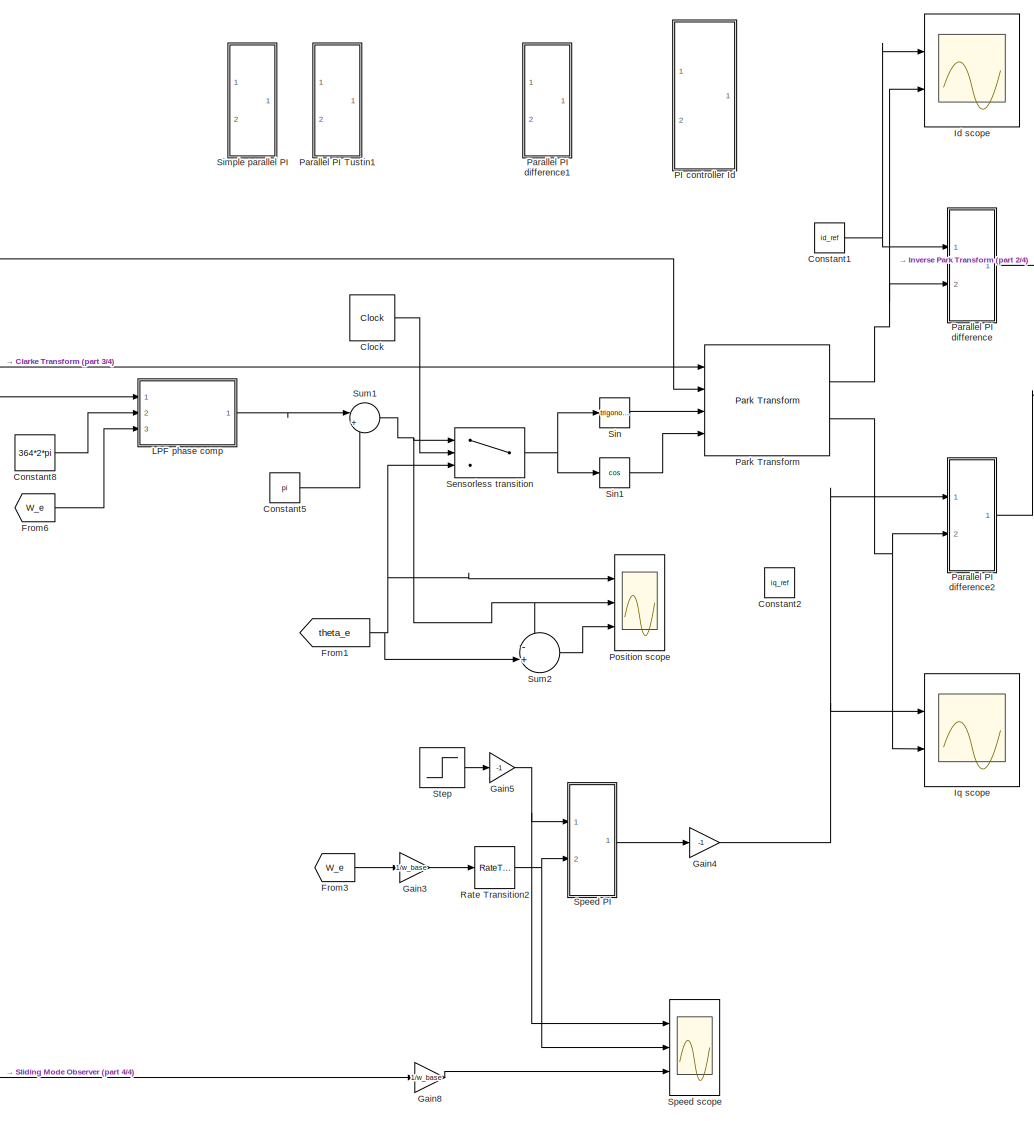
[diagram: root canvas - part 1/4, center side, full height]
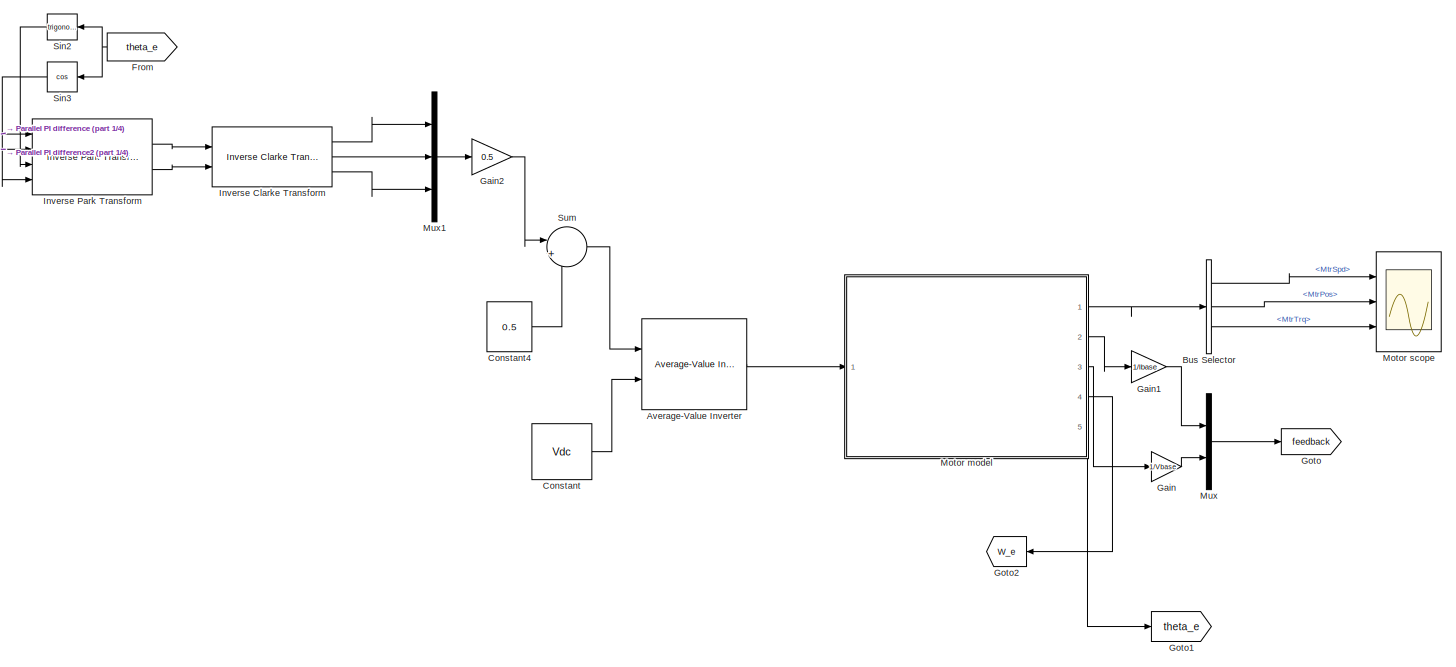
[diagram: root canvas - part 2/4, middle right region]
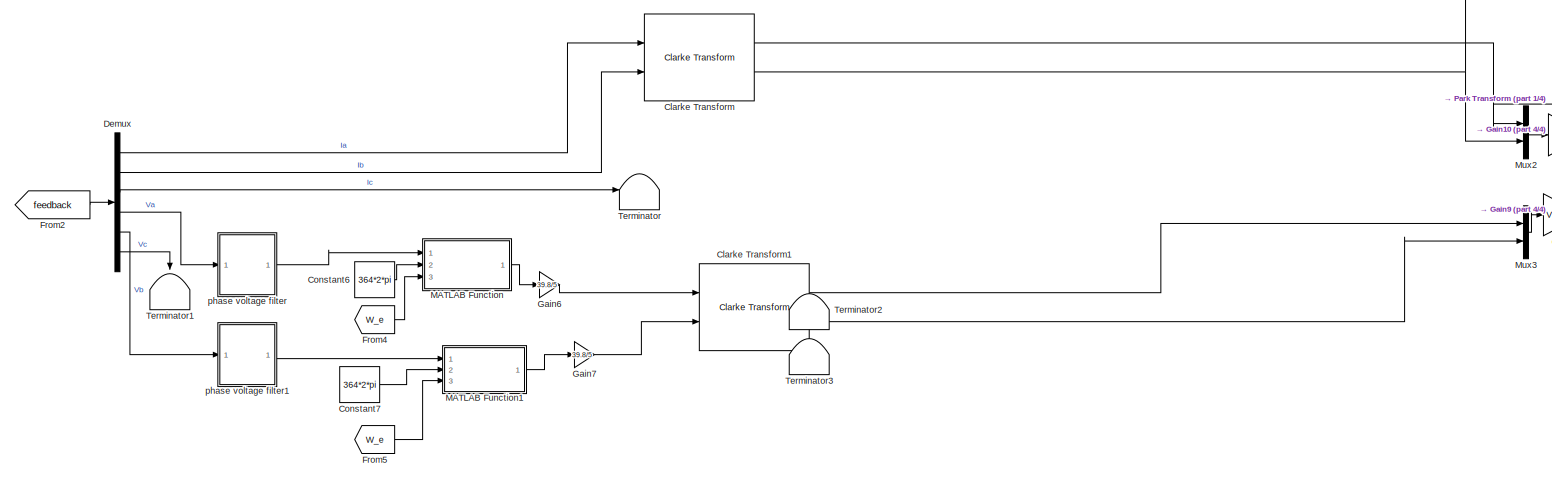
[diagram: root canvas - part 3/4, middle left region]
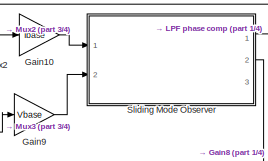
[diagram: root canvas - part 4/4, central region]
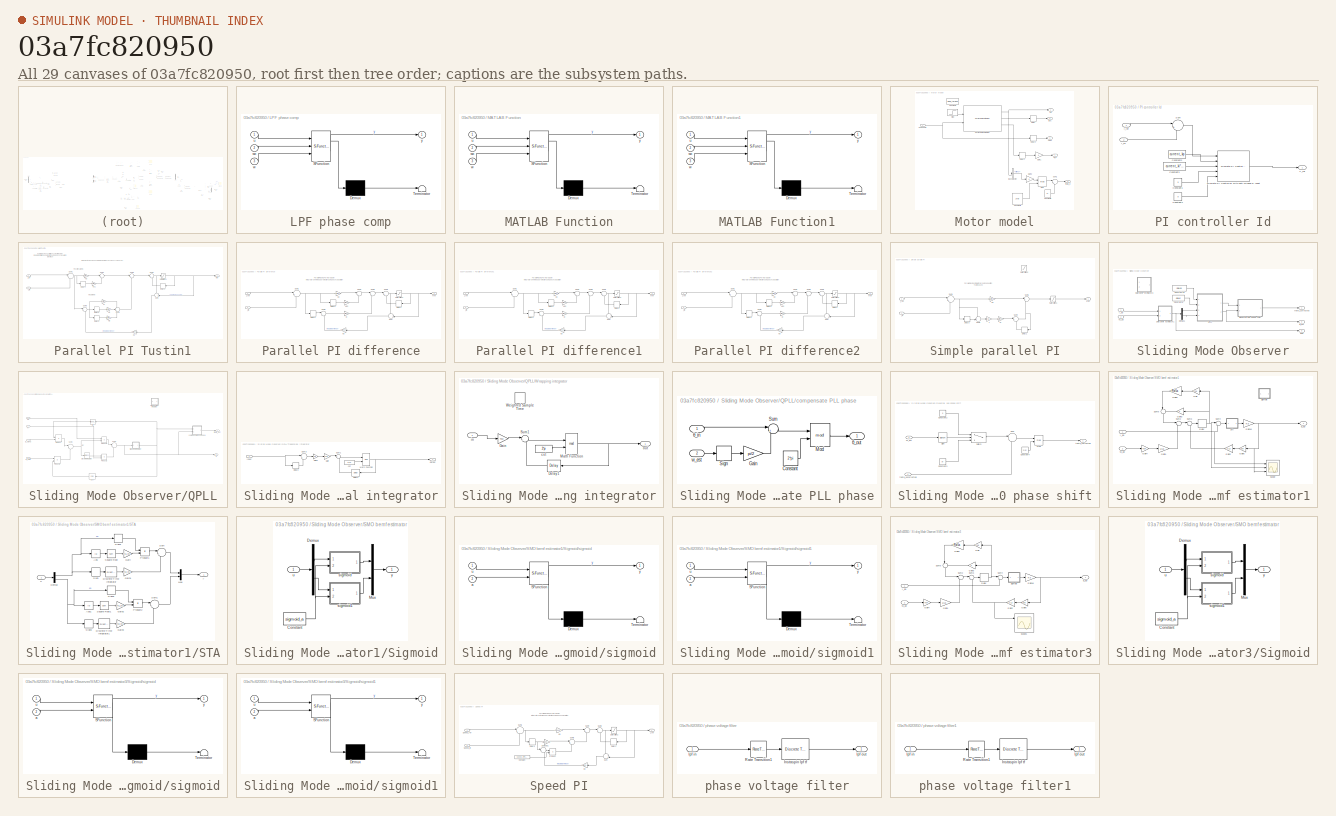
[diagram: thumbnail index - all 29 canvases of the model, root first then tree order]
MODEL slx_03a7fc820950
KIND model
CONFIG AbsTol = auto
CONFIG EnableMultiTasking = off
CONFIG FixedStep = Tsw
CONFIG MaxStep = auto
CONFIG MinStep = auto
CONFIG RelTol = 1e-3
CONFIG SampleTimeConstraint = Unconstrained
CONFIG SolverName = FixedStepDiscrete
CONFIG StartTime = 0.0
CONFIG StopTime = 6
BLOCK [Reference] Average-Value Inverter  REF=mcbplantlib/Average-Value Inverter
  Ports = [2, 1]
  SourceBlock = mcbplantlib/Average-Value Inverter
  SourceProductBaseCode = MT
  SourceType = Average Value Inverter
BLOCK [BusSelector] Bus Selector
  OutputSignals = MtrSpd,MtrPos,MtrTrq
  Ports = [1, 3]
BLOCK [Reference] Clarke Transform  REF=mcbcontrolslib/Clarke Transform
  Ports = [2, 2]
  SourceBlock = mcbcontrolslib/Clarke Transform
  SourceProductBaseCode = MT
  SourceType = Clarke Transform
BLOCK [Reference] Clarke Transform1  REF=mcbcontrolslib/Clarke Transform
  Ports = [2, 2]
  SourceBlock = mcbcontrolslib/Clarke Transform
  SourceProductBaseCode = MT
  SourceType = Clarke Transform
BLOCK [Clock] Clock
BLOCK [Constant] Constant
  Value = Vdc
BLOCK [Constant] Constant1
  Value = id_ref
BLOCK [Constant] Constant2
  Value = iq_ref
BLOCK [Constant] Constant4
  Value = 0.5
BLOCK [Constant] Constant5
  Value = pi
BLOCK [Constant] Constant6
  Value = 364*2*pi
BLOCK [Constant] Constant7
  Value = 364*2*pi
BLOCK [Constant] Constant8
  Value = 364*2*pi
BLOCK [Demux] Demux
  Outputs = 6
  Ports = [1, 6]
BLOCK [From] From
  GotoTag = theta_e
  NameLocation = top
BLOCK [From] From1
  GotoTag = theta_e
BLOCK [From] From2
  GotoTag = feedback
BLOCK [From] From3
  GotoTag = W_e
BLOCK [From] From4
  GotoTag = W_e
BLOCK [From] From5
  GotoTag = W_e
BLOCK [From] From6
  GotoTag = W_e
BLOCK [Gain] Gain
  Gain = 1/Vbase
BLOCK [Gain] Gain1
  Gain = 1/Ibase
BLOCK [Gain] Gain10
  Gain = Ibase
BLOCK [Gain] Gain2
  Gain = 0.5
BLOCK [Gain] Gain3
  Gain = 1/w_base
BLOCK [Gain] Gain4
  Gain = -1
BLOCK [Gain] Gain5
  Gain = -1
BLOCK [Gain] Gain6
  Gain = 39.8/5
BLOCK [Gain] Gain7
  Gain = 39.8/5
BLOCK [Gain] Gain8
  Gain = 1/w_base
BLOCK [Gain] Gain9
  Gain = Vbase
BLOCK [Goto] Goto
  GotoTag = feedback
BLOCK [Goto] Goto1
  GotoTag = theta_e
BLOCK [Goto] Goto2
  GotoTag = W_e
  NameLocation = top
BLOCK [Scope] Id scope
  Floating = off
  NumInputPorts = 2
  Ports = [2]
  ScopeSpecificationString = Simulink.scopes.TimeScopeBlockCfg('CurrentConfiguration', extmgr.ConfigurationSet(extmgr.Configuration('Core','General UI',true),extmgr.Configuration('Core','Source UI',true),extmgr.Configuration('Sources','WiredSimulink',true,'DataLoggingVariableName','ScopeData1'),extmgr.Configuration('Visuals','Time Domain',true,'SerializedDisplays',{struct('MinYLimReal','-0.04667','MaxYLimReal','0.13708','YLab...<+1683ch>
BLOCK [Reference] Inverse Clarke Transform  REF=mcbcontrolslib/Inverse Clarke Transform
  Ports = [2, 3]
  SourceBlock = mcbcontrolslib/Inverse Clarke Transform
  SourceProductBaseCode = MT
  SourceType = Inverse Clarke Transform
BLOCK [Reference] Inverse Park Transform  REF=mcbcontrolslib/Inverse Park Transform
  Ports = [4, 2]
  SourceBlock = mcbcontrolslib/Inverse Park Transform
  SourceProductBaseCode = MT
  SourceType = Inverse Park Transform
BLOCK [Scope] Iq scope
  Floating = off
  NumInputPorts = 2
  Ports = [2]
  ScopeSpecificationString = Simulink.scopes.TimeScopeBlockCfg('CurrentConfiguration', extmgr.ConfigurationSet(extmgr.Configuration('Core','General UI',true),extmgr.Configuration('Core','Source UI',true),extmgr.Configuration('Sources','WiredSimulink',true,'DataLoggingVariableName','ScopeData2'),extmgr.Configuration('Visuals','Time Domain',true,'SerializedDisplays',{struct('MinYLimReal','-0.50611','MaxYLimReal','1.16735','YLab...<+1803ch>
BLOCK [SubSystem] LPF phase comp
  ErrorFcn = Stateflow.Translate.translate
  PermitHierarchicalResolution = ExplicitOnly
  Ports = [3, 1]
  RequestExecContextInheritance = off
  SFBlockType = MATLAB Function
  TreatAsAtomicUnit = on
BLOCK [Demux] LPF phase comp/ Demux 
  Outputs = 1
  Ports = [1, 1]
BLOCK [S-Function] LPF phase comp/ SFunction 
  EnableBusSupport = on
  FunctionName = sf_sfun
  PortCounts = [3 2]
  Ports = [3, 2]
  SFcnIsStateOwnerBlock = off
  SFunctionDeploymentMode = off
  Tag = Stateflow S-Function 3
BLOCK [Terminator] LPF phase comp/ Terminator 
BLOCK [Inport] LPF phase comp/u
BLOCK [Inport] LPF phase comp/w
  Port = 3
BLOCK [Inport] LPF phase comp/wc
  Port = 2
BLOCK [Outport] LPF phase comp/y
BLOCK [SubSystem] MATLAB Function
  ErrorFcn = Stateflow.Translate.translate
  PermitHierarchicalResolution = ExplicitOnly
  Ports = [3, 1]
  RequestExecContextInheritance = off
  SFBlockType = MATLAB Function
  TreatAsAtomicUnit = on
BLOCK [Demux] MATLAB Function/ Demux 
  Outputs = 1
  Ports = [1, 1]
BLOCK [S-Function] MATLAB Function/ SFunction 
  EnableBusSupport = on
  FunctionName = sf_sfun
  PortCounts = [3 2]
  Ports = [3, 2]
  SFcnIsStateOwnerBlock = off
  SFunctionDeploymentMode = off
  Tag = Stateflow S-Function 2
BLOCK [Terminator] MATLAB Function/ Terminator 
BLOCK [Inport] MATLAB Function/u
BLOCK [Inport] MATLAB Function/w
  Port = 3
BLOCK [Inport] MATLAB Function/wc
  Port = 2
BLOCK [Outport] MATLAB Function/y
BLOCK [SubSystem] MATLAB Function1
  ErrorFcn = Stateflow.Translate.translate
  PermitHierarchicalResolution = ExplicitOnly
  Ports = [3, 1]
  RequestExecContextInheritance = off
  SFBlockType = MATLAB Function
  TreatAsAtomicUnit = on
BLOCK [Demux] MATLAB Function1/ Demux 
  Outputs = 1
  Ports = [1, 1]
BLOCK [S-Function] MATLAB Function1/ SFunction 
  EnableBusSupport = on
  FunctionName = sf_sfun
  PortCounts = [3 2]
  Ports = [3, 2]
  SFcnIsStateOwnerBlock = off
  SFunctionDeploymentMode = off
  Tag = Stateflow S-Function 1
BLOCK [Terminator] MATLAB Function1/ Terminator 
BLOCK [Inport] MATLAB Function1/u
BLOCK [Inport] MATLAB Function1/w
  Port = 3
BLOCK [Inport] MATLAB Function1/wc
  Port = 2
BLOCK [Outport] MATLAB Function1/y
BLOCK [SubSystem] Motor model
  Ports = [1, 5]
  RequestExecContextInheritance = off
BLOCK [BusSelector] Motor model/Bus Selector
  OutputSignals = MtrPos
  Ports = [1, 1]
BLOCK [Constant] Motor model/Constant1
  Value = load_torque
BLOCK [Constant] Motor model/Constant5
  Value = 2*pi
BLOCK [Constant] Motor model/Constant6
  Value = pi
BLOCK [Delay] Motor model/Delay
  DelayLength = 1
  InitialCondition = 0
  InputPortMap = u0
  Ports = [1, 1]
BLOCK [Delay] Motor model/Delay1
  DelayLength = 1
  InitialCondition = 0
  InputPortMap = u0
  Ports = [1, 1]
BLOCK [Delay] Motor model/Delay2
  DelayLength = 1
  InitialCondition = 0
  InputPortMap = u0
  Ports = [1, 1]
BLOCK [Gain] Motor model/Gain1
  Gain = 4
BLOCK [Gain] Motor model/Gain2
  Gain = 4
BLOCK [Outport] Motor model/Iabc
  Port = 2
BLOCK [Outport] Motor model/Info
BLOCK [Math] Motor model/Mod
  Operator = mod
  Ports = [2, 1]
BLOCK [Inport] Motor model/PhaseVolt
BLOCK [Step] Motor model/Step
  After = -0.4
  Before = -0.02
  SampleTime = 0
  Time = 3
BLOCK [Sum] Motor model/Sum1
  Inputs = |+-
  Ports = [2, 1]
BLOCK [Reference] Motor model/Surface Mount PMSM  REF=autolibpmsmexterior/Surface Mount PMSM
  Ports = [2, 3]
  SourceBlock = autolibpmsmexterior/Surface Mount PMSM
  SourceProductBaseCode = PW,DR,MT,UV,VE
  SourceType = Surface Mount PMSM
BLOCK [Outport] Motor model/Vabc
  Port = 3
BLOCK [Outport] Motor model/W_e
  Port = 4
BLOCK [Outport] Motor model/theta_e
  Port = 5
BLOCK [Scope] Motor scope
  Floating = off
  NumInputPorts = 3
  Ports = [3]
  ScopeSpecificationString = Simulink.scopes.TimeScopeBlockCfg('CurrentConfiguration', extmgr.ConfigurationSet(extmgr.Configuration('Core','General UI',true),extmgr.Configuration('Core','Source UI',true),extmgr.Configuration('Sources','WiredSimulink',true),extmgr.Configuration('Visuals','Time Domain',true,'SerializedDisplays',{struct('MinYLimReal','-281.93797','MaxYLimReal','-65.72003','YLabelReal','','MinYLimMag',' 0.00000',...<+2814ch>
BLOCK [Mux] Mux
  DisplayOption = bar
  Inputs = 2
  Ports = [2, 1]
BLOCK [Mux] Mux1
  DisplayOption = bar
  Inputs = 3
  Ports = [3, 1]
BLOCK [Mux] Mux2
  DisplayOption = bar
  Inputs = 2
  Ports = [2, 1]
BLOCK [Mux] Mux3
  DisplayOption = bar
  Inputs = 2
  Ports = [2, 1]
BLOCK [SubSystem] PI controller Id
  Ports = [2, 1]
  RequestExecContextInheritance = off
BLOCK [Constant] PI controller Id/Constant1
  Value = 0
BLOCK [Constant] PI controller Id/Constant2
  Value = current_kp
BLOCK [Constant] PI controller Id/Constant3
  Value = current_ki*Tsw
BLOCK [Constant] PI controller Id/Constant4
  Value = 0
BLOCK [Reference] PI controller Id/Discrete PI Controller with anti-windup & reset  REF=mcbcontrolslib/Discrete PI Controller 
with anti-windup & reset
  Ports = [5, 1]
  SourceBlock = mcbcontrolslib/Discrete PI Controller \nwith anti-windup & reset
  SourceProductBaseCode = MT
  SourceType = Discrete PI Controller with anti-windup and reset
BLOCK [Inport] PI controller Id/I_fb
  Port = 2
BLOCK [Inport] PI controller Id/I_ref
BLOCK [Sum] PI controller Id/Sum
  Inputs = |+-
  Ports = [2, 1]
BLOCK [Outport] PI controller Id/V_ref
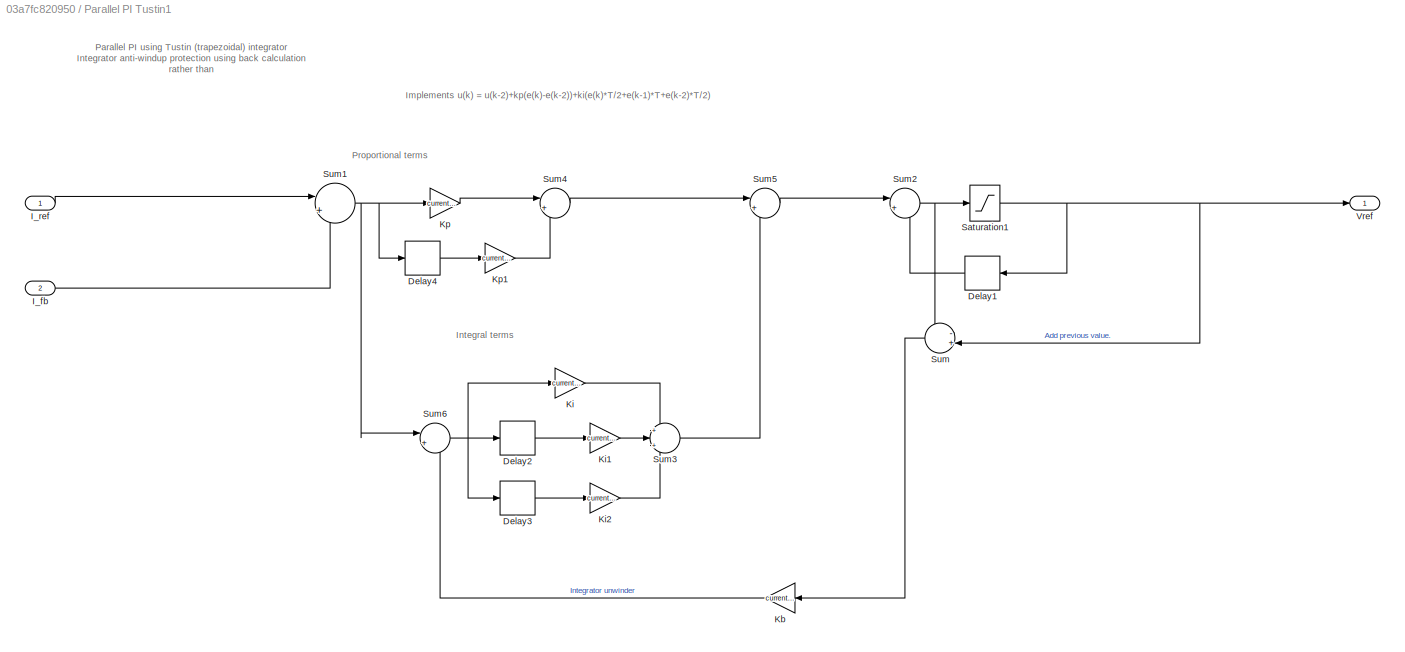
BLOCK [SubSystem] Parallel PI Tustin1
  Ports = [2, 1]
  RequestExecContextInheritance = off
BLOCK [Delay] Parallel PI Tustin1/Delay1
  InitialCondition = 0
  InputPortMap = u0
  NameLocation = top
  Ports = [1, 1]
BLOCK [Delay] Parallel PI Tustin1/Delay2
  DelayLength = 1
  InitialCondition = 0
  InputPortMap = u0
  Ports = [1, 1]
BLOCK [Delay] Parallel PI Tustin1/Delay3
  InitialCondition = 0
  InputPortMap = u0
  Ports = [1, 1]
BLOCK [Delay] Parallel PI Tustin1/Delay4
  InitialCondition = 0
  InputPortMap = u0
  Ports = [1, 1]
BLOCK [Inport] Parallel PI Tustin1/I_fb
  Port = 2
BLOCK [Inport] Parallel PI Tustin1/I_ref
BLOCK [Gain] Parallel PI Tustin1/Kb
  Gain = current_ki
  NameLocation = top
BLOCK [Gain] Parallel PI Tustin1/Ki
  Gain = current_ki * Tsw/2
BLOCK [Gain] Parallel PI Tustin1/Ki1
  Gain = current_ki * Tsw
BLOCK [Gain] Parallel PI Tustin1/Ki2
  Gain = current_ki * Tsw/2
BLOCK [Gain] Parallel PI Tustin1/Kp
  Gain = current_kp
BLOCK [Gain] Parallel PI Tustin1/Kp1
  Gain = current_kp
BLOCK [Saturate] Parallel PI Tustin1/Saturation1
  LowerLimit = -1
  UpperLimit = 1
BLOCK [Sum] Parallel PI Tustin1/Sum
  Inputs = -+|
  NameLocation = top
  Ports = [2, 1]
BLOCK [Sum] Parallel PI Tustin1/Sum1
  Inputs = |+-
  Ports = [2, 1]
BLOCK [Sum] Parallel PI Tustin1/Sum2
  Inputs = |++
  Ports = [2, 1]
BLOCK [Sum] Parallel PI Tustin1/Sum3
  Inputs = +|+|+
  Ports = [3, 1]
BLOCK [Sum] Parallel PI Tustin1/Sum4
  Inputs = |+-
  Ports = [2, 1]
BLOCK [Sum] Parallel PI Tustin1/Sum5
  Inputs = |++
  Ports = [2, 1]
BLOCK [Sum] Parallel PI Tustin1/Sum6
  Inputs = |++
  Ports = [2, 1]
BLOCK [Outport] Parallel PI Tustin1/Vref
BLOCK [SubSystem] Parallel PI difference
  Ports = [2, 1]
  RequestExecContextInheritance = off
BLOCK [Delay] Parallel PI difference/Delay1
  DelayLength = 1
  InitialCondition = 0
  InputPortMap = u0
  NameLocation = top
  Ports = [1, 1]
BLOCK [Delay] Parallel PI difference/Delay2
  DelayLength = 1
  InitialCondition = 0
  InputPortMap = u0
  Ports = [1, 1]
BLOCK [Delay] Parallel PI difference/Delay3
  DelayLength = 1
  InitialCondition = 0
  InputPortMap = u0
  Ports = [1, 1]
BLOCK [Inport] Parallel PI difference/I_fb
  Port = 2
BLOCK [Inport] Parallel PI difference/I_ref
BLOCK [Gain] Parallel PI difference/Kb
  Gain = current_ki
  NameLocation = top
BLOCK [Gain] Parallel PI difference/Ki
  Gain = current_ki*Tsw
BLOCK [Gain] Parallel PI difference/Kp
  Gain = current_kp
BLOCK [Gain] Parallel PI difference/Kp2
  Gain = current_kp
BLOCK [Saturate] Parallel PI difference/Saturation1
  LowerLimit = 0
  UpperLimit = 1
BLOCK [Sum] Parallel PI difference/Sum
  Inputs = -+|
  NameLocation = top
  Ports = [2, 1]
BLOCK [Sum] Parallel PI difference/Sum1
  Inputs = |+-
  Ports = [2, 1]
BLOCK [Sum] Parallel PI difference/Sum2
  Inputs = |++
  Ports = [2, 1]
BLOCK [Sum] Parallel PI difference/Sum3
  Inputs = |++
  Ports = [2, 1]
BLOCK [Sum] Parallel PI difference/Sum4
  Inputs = |+-
  Ports = [2, 1]
BLOCK [Sum] Parallel PI difference/Sum5
  Inputs = |++
  Ports = [2, 1]
BLOCK [Outport] Parallel PI difference/Vref
BLOCK [SubSystem] Parallel PI difference1
  Ports = [2, 1]
  RequestExecContextInheritance = off
BLOCK [Delay] Parallel PI difference1/Delay1
  DelayLength = 1
  InitialCondition = 0
  InputPortMap = u0
  NameLocation = top
  Ports = [1, 1]
BLOCK [Delay] Parallel PI difference1/Delay2
  DelayLength = 1
  InitialCondition = 0
  InputPortMap = u0
  Ports = [1, 1]
BLOCK [Delay] Parallel PI difference1/Delay3
  DelayLength = 1
  InitialCondition = 0
  InputPortMap = u0
  Ports = [1, 1]
BLOCK [Inport] Parallel PI difference1/I_fb
  Port = 2
BLOCK [Inport] Parallel PI difference1/I_ref
BLOCK [Gain] Parallel PI difference1/Kb
  Gain = current_ki
  NameLocation = top
BLOCK [Gain] Parallel PI difference1/Ki
  Gain = current_ki*Tsw
BLOCK [Gain] Parallel PI difference1/Kp
  Gain = current_kp
BLOCK [Gain] Parallel PI difference1/Kp2
  Gain = current_kp
BLOCK [Saturate] Parallel PI difference1/Saturation1
  LowerLimit = 0
  UpperLimit = 1
BLOCK [Sum] Parallel PI difference1/Sum
  Inputs = -+|
  NameLocation = top
  Ports = [2, 1]
BLOCK [Sum] Parallel PI difference1/Sum1
  Inputs = |+-
  Ports = [2, 1]
BLOCK [Sum] Parallel PI difference1/Sum2
  Inputs = |++
  Ports = [2, 1]
BLOCK [Sum] Parallel PI difference1/Sum3
  Inputs = |++
  Ports = [2, 1]
BLOCK [Sum] Parallel PI difference1/Sum4
  Inputs = |+-
  Ports = [2, 1]
BLOCK [Sum] Parallel PI difference1/Sum5
  Inputs = |++
  Ports = [2, 1]
BLOCK [Outport] Parallel PI difference1/Vref
BLOCK [SubSystem] Parallel PI difference2
  Ports = [2, 1]
  RequestExecContextInheritance = off
BLOCK [Delay] Parallel PI difference2/Delay1
  DelayLength = 1
  InitialCondition = 0
  InputPortMap = u0
  NameLocation = top
  Ports = [1, 1]
BLOCK [Delay] Parallel PI difference2/Delay2
  DelayLength = 1
  InitialCondition = 0
  InputPortMap = u0
  Ports = [1, 1]
BLOCK [Delay] Parallel PI difference2/Delay3
  DelayLength = 1
  InitialCondition = 0
  InputPortMap = u0
  Ports = [1, 1]
BLOCK [Inport] Parallel PI difference2/I_fb
  Port = 2
BLOCK [Inport] Parallel PI difference2/I_ref
BLOCK [Gain] Parallel PI difference2/Kb
  Gain = current_ki
  NameLocation = top
BLOCK [Gain] Parallel PI difference2/Ki
  Gain = current_ki*Tsw
BLOCK [Gain] Parallel PI difference2/Kp
  Gain = current_kp
BLOCK [Gain] Parallel PI difference2/Kp2
  Gain = current_kp
BLOCK [Saturate] Parallel PI difference2/Saturation1
  LowerLimit = 0
  UpperLimit = 1
BLOCK [Sum] Parallel PI difference2/Sum
  Inputs = -+|
  NameLocation = top
  Ports = [2, 1]
BLOCK [Sum] Parallel PI difference2/Sum1
  Inputs = |+-
  Ports = [2, 1]
BLOCK [Sum] Parallel PI difference2/Sum2
  Inputs = |++
  Ports = [2, 1]
BLOCK [Sum] Parallel PI difference2/Sum3
  Inputs = |++
  Ports = [2, 1]
BLOCK [Sum] Parallel PI difference2/Sum4
  Inputs = |+-
  Ports = [2, 1]
BLOCK [Sum] Parallel PI difference2/Sum5
  Inputs = |++
  Ports = [2, 1]
BLOCK [Outport] Parallel PI difference2/Vref
BLOCK [Reference] Park Transform  REF=mcbcontrolslib/Park Transform
  Ports = [4, 2]
  SourceBlock = mcbcontrolslib/Park Transform
  SourceProductBaseCode = MT
  SourceType = Park Transform
BLOCK [Scope] Position scope
  Floating = off
  NumInputPorts = 3
  Ports = [3]
  ScopeSpecificationString = Simulink.scopes.TimeScopeBlockCfg('CurrentConfiguration', extmgr.ConfigurationSet(extmgr.Configuration('Core','General UI',true),extmgr.Configuration('Core','Source UI',true),extmgr.Configuration('Sources','WiredSimulink',true,'DataLoggingVariableName','ScopeData1'),extmgr.Configuration('Visuals','Time Domain',true,'SerializedDisplays',{struct('MinYLimReal','-3.71866','MaxYLimReal','3.68932','YLab...<+3771ch>
BLOCK [RateTransition] Rate Transition2
  OutPortSampleTime = Ts_speed
BLOCK [Switch] Sensorless transition
  Criteria = u2 > Threshold
  InputSameDT = off
  SaturateOnIntegerOverflow = off
  Threshold = 1
BLOCK [SubSystem] Simple parallel PI
  Ports = [2, 1]
  RequestExecContextInheritance = off
BLOCK [Gain] Simple parallel PI/1
  Gain = 0.5
BLOCK [Delay] Simple parallel PI/Delay1
  DelayLength = 1
  InitialCondition = 0
  InputPortMap = u0
  NameLocation = top
  Ports = [1, 1]
BLOCK [Delay] Simple parallel PI/Delay3
  DelayLength = 1
  InitialCondition = 0
  InputPortMap = u0
  Ports = [1, 1]
BLOCK [Inport] Simple parallel PI/I_fb
  Port = 2
BLOCK [Inport] Simple parallel PI/I_ref
BLOCK [Gain] Simple parallel PI/Ki
  Gain = current_ki*Tsw
BLOCK [Gain] Simple parallel PI/Kp
  Gain = current_kp
BLOCK [Saturate] Simple parallel PI/Saturation1
  LowerLimit = 0
  UpperLimit = 1
BLOCK [Saturate] Simple parallel PI/Saturation2
  LowerLimit = 0
  UpperLimit = 1
BLOCK [Sum] Simple parallel PI/Sum1
  Inputs = |+-
  Ports = [2, 1]
BLOCK [Sum] Simple parallel PI/Sum3
  Inputs = ++|
  Ports = [2, 1]
BLOCK [Sum] Simple parallel PI/Sum4
  Inputs = |++
  Ports = [2, 1]
BLOCK [Sum] Simple parallel PI/Sum5
  Inputs = |++
  Ports = [2, 1]
BLOCK [Outport] Simple parallel PI/Vref
BLOCK [Trigonometry] Sin
  Ports = [1, 1]
BLOCK [Trigonometry] Sin1
  Operator = cos
  Ports = [1, 1]
BLOCK [Trigonometry] Sin2
  NameLocation = top
  Ports = [1, 1]
BLOCK [Trigonometry] Sin3
  NameLocation = top
  Operator = cos
  Ports = [1, 1]
BLOCK [SubSystem] Sliding Mode Observer
  Ports = [2, 3]
  RequestExecContextInheritance = off
BLOCK [Constant] Sliding Mode Observer/Constant10
  Value = qpll.kp
BLOCK [Constant] Sliding Mode Observer/Constant9
  Value = qpll.ki
BLOCK [Demux] Sliding Mode Observer/Demux1
  Outputs = 2
  Ports = [1, 2]
BLOCK [Outport] Sliding Mode Observer/Eab
  Port = 3
BLOCK [Inport] Sliding Mode Observer/I_ab
BLOCK [SubSystem] Sliding Mode Observer/QPLL
  Ports = [4, 2]
  RequestExecContextInheritance = off
BLOCK [Trigonometry] Sliding Mode Observer/QPLL/Cos
  NameLocation = top
  Operator = cos
  Ports = [1, 1]
BLOCK [DiscreteIntegrator] Sliding Mode Observer/QPLL/Discrete integrator
  ICPrevOutput = DiscIntNeverNeededParam
  ICPrevScaledInput = DiscIntNeverNeededParam
  InitialConditionSetting = Auto
  Ports = [1, 1]
  SampleTime = -1
BLOCK [Inport] Sliding Mode Observer/QPLL/E_alpha
  Port = 3
BLOCK [Inport] Sliding Mode Observer/QPLL/E_beta
  Port = 4
BLOCK [Product] Sliding Mode Observer/QPLL/Product
  Ports = [2, 1]
BLOCK [Product] Sliding Mode Observer/QPLL/Product1
  Ports = [2, 1]
BLOCK [Product] Sliding Mode Observer/QPLL/Product2
  Ports = [2, 1]
BLOCK [Product] Sliding Mode Observer/QPLL/Product3
  Ports = [2, 1]
BLOCK [Trigonometry] Sliding Mode Observer/QPLL/Sin
  NameLocation = top
  Ports = [1, 1]
BLOCK [Sum] Sliding Mode Observer/QPLL/Sum2
  Inputs = |-+
  Ports = [2, 1]
BLOCK [Sum] Sliding Mode Observer/QPLL/Sum4
  Inputs = |++
  Ports = [2, 1]
BLOCK [SubSystem] Sliding Mode Observer/QPLL/Trapezoidal integrator
  Ports = [1, 1]
  RequestExecContextInheritance = off
BLOCK [Delay] Sliding Mode Observer/QPLL/Trapezoidal integrator/Delay1
  DelayLength = 1
  InputPortMap = u0
  NameLocation = top
  Ports = [1, 1]
BLOCK [Delay] Sliding Mode Observer/QPLL/Trapezoidal integrator/Delay2
  DelayLength = 1
  InputPortMap = u0
  Ports = [1, 1]
BLOCK [Gain] Sliding Mode Observer/QPLL/Trapezoidal integrator/Gain
  Gain = Tsw
BLOCK [Gain] Sliding Mode Observer/QPLL/Trapezoidal integrator/Gain1
  Gain = 0.5
BLOCK [Inport] Sliding Mode Observer/QPLL/Trapezoidal integrator/Input
BLOCK [Math] Sliding Mode Observer/QPLL/Trapezoidal integrator/Math Function
  NameLocation = top
  Operator = mod
  OutputSignalType = real
  Ports = [2, 1]
  SignedPower = on
BLOCK [Outport] Sliding Mode Observer/QPLL/Trapezoidal integrator/Output
BLOCK [Sum] Sliding Mode Observer/QPLL/Trapezoidal integrator/Sum1
  Inputs = |++
  Ports = [2, 1]
BLOCK [Sum] Sliding Mode Observer/QPLL/Trapezoidal integrator/Sum3
  Inputs = |++
  Ports = [2, 1]
BLOCK [Constant] Sliding Mode Observer/QPLL/Trapezoidal integrator/cst
  OutDataTypeStr = Inherit: Inherit via back propagation
  Value = 2*pi
BLOCK [SubSystem] Sliding Mode Observer/QPLL/Wrapping integrator
  Ports = [1, 1]
  RequestExecContextInheritance = off
BLOCK [Delay] Sliding Mode Observer/QPLL/Wrapping integrator/Delay1
  DelayLength = 1
  InputPortMap = u0
  NameLocation = top
  Ports = [1, 1]
BLOCK [Gain] Sliding Mode Observer/QPLL/Wrapping integrator/Gain
  Gain = Tsw
BLOCK [Math] Sliding Mode Observer/QPLL/Wrapping integrator/Math Function
  NameLocation = top
  Operator = mod
  OutputSignalType = real
  Ports = [2, 1]
  SignedPower = on
BLOCK [Sum] Sliding Mode Observer/QPLL/Wrapping integrator/Sum1
  Inputs = |++
  Ports = [2, 1]
BLOCK [SampleTimeMath] Sliding Mode Observer/QPLL/Wrapping integrator/Weighted Sample Time
  TsampMathOp = *
BLOCK [Constant] Sliding Mode Observer/QPLL/Wrapping integrator/cst
  OutDataTypeStr = Inherit: Inherit via back propagation
  Value = 2*pi
BLOCK [Inport] Sliding Mode Observer/QPLL/Wrapping integrator/in
BLOCK [Outport] Sliding Mode Observer/QPLL/Wrapping integrator/out
BLOCK [SubSystem] Sliding Mode Observer/QPLL/compensate PLL phase
  Ports = [2, 1]
  RequestExecContextInheritance = off
BLOCK [Constant] Sliding Mode Observer/QPLL/compensate PLL phase/Constant
  Value = 2*pi
BLOCK [Gain] Sliding Mode Observer/QPLL/compensate PLL phase/Gain
  Gain = pi/2
BLOCK [Math] Sliding Mode Observer/QPLL/compensate PLL phase/Mod
  Operator = mod
  Ports = [2, 1]
BLOCK [Signum] Sliding Mode Observer/QPLL/compensate PLL phase/Sign
BLOCK [Sum] Sliding Mode Observer/QPLL/compensate PLL phase/Sum
  Inputs = |++
  Ports = [2, 1]
BLOCK [Inport] Sliding Mode Observer/QPLL/compensate PLL phase/w_est
  Port = 2
BLOCK [Inport] Sliding Mode Observer/QPLL/compensate PLL phase/θ_in
BLOCK [Outport] Sliding Mode Observer/QPLL/compensate PLL phase/θ_out
BLOCK [Inport] Sliding Mode Observer/QPLL/ki
  Port = 2
BLOCK [Inport] Sliding Mode Observer/QPLL/kp
BLOCK [Outport] Sliding Mode Observer/QPLL/theta_est
BLOCK [Outport] Sliding Mode Observer/QPLL/w
  Port = 2
BLOCK [SubSystem] Sliding Mode Observer/Reversal 180 phase shift
  Ports = [2, 1]
  RequestExecContextInheritance = off
BLOCK [Constant] Sliding Mode Observer/Reversal 180 phase shift/Constant2
  Value = 0
BLOCK [Constant] Sliding Mode Observer/Reversal 180 phase shift/Constant3
  Value = pi
BLOCK [Constant] Sliding Mode Observer/Reversal 180 phase shift/Constant4
  Value = 2*pi
BLOCK [Math] Sliding Mode Observer/Reversal 180 phase shift/Mod
  Operator = mod
  Ports = [2, 1]
BLOCK [Signum] Sliding Mode Observer/Reversal 180 phase shift/Sign
BLOCK [Sum] Sliding Mode Observer/Reversal 180 phase shift/Sum
  Inputs = |++
  Ports = [2, 1]
BLOCK [Switch] Sliding Mode Observer/Reversal 180 phase shift/Switch
  Criteria = u2 > Threshold
  InputSameDT = off
  SaturateOnIntegerOverflow = off
BLOCK [Inport] Sliding Mode Observer/Reversal 180 phase shift/W_est
  Port = 2
BLOCK [Outport] Sliding Mode Observer/Reversal 180 phase shift/theta_corrected
BLOCK [Inport] Sliding Mode Observer/Reversal 180 phase shift/theta_uncorrected
BLOCK [SubSystem] Sliding Mode Observer/SMO bemf estimator1
  Ports = [2, 1]
  RequestExecContextInheritance = off
BLOCK [Delay] Sliding Mode Observer/SMO bemf estimator1/Delay
  DelayLength = 1
  InitialCondition = 0
  InputPortMap = u0
  Ports = [1, 1]
BLOCK [Outport] Sliding Mode Observer/SMO bemf estimator1/E_ab
BLOCK [Gain] Sliding Mode Observer/SMO bemf estimator1/Gain
  Gain = Tsw
  NameLocation = top
BLOCK [Gain] Sliding Mode Observer/SMO bemf estimator1/Gain1
  Gain = 1/Ls
BLOCK [Gain] Sliding Mode Observer/SMO bemf estimator1/Gain10
  Commented = through
  Gain = Ks
BLOCK [Gain] Sliding Mode Observer/SMO bemf estimator1/Gain2
  Gain = 1/Ls
  NameLocation = top
BLOCK [Gain] Sliding Mode Observer/SMO bemf estimator1/Gain3
  NameLocation = top
BLOCK [Gain] Sliding Mode Observer/SMO bemf estimator1/Gain4
  Gain = Tsw
BLOCK [Gain] Sliding Mode Observer/SMO bemf estimator1/Gain5
  Gain = Tsw
  NameLocation = top
BLOCK [Gain] Sliding Mode Observer/SMO bemf estimator1/Gain8
  Gain = Rs/Ls
  NameLocation = top
BLOCK [Inport] Sliding Mode Observer/SMO bemf estimator1/I_ab
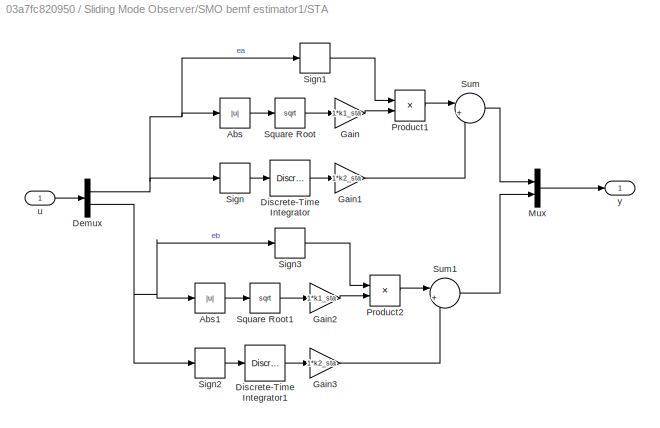
BLOCK [SubSystem] Sliding Mode Observer/SMO bemf estimator1/STA
  Ports = [1, 1]
  RequestExecContextInheritance = off
BLOCK [Abs] Sliding Mode Observer/SMO bemf estimator1/STA/Abs
  SaturateOnIntegerOverflow = off
BLOCK [Abs] Sliding Mode Observer/SMO bemf estimator1/STA/Abs1
  SaturateOnIntegerOverflow = off
BLOCK [Demux] Sliding Mode Observer/SMO bemf estimator1/STA/Demux
  Outputs = 2
  Ports = [1, 2]
BLOCK [DiscreteIntegrator] Sliding Mode Observer/SMO bemf estimator1/STA/Discrete-Time Integrator
  ICPrevOutput = DiscIntNeverNeededParam
  ICPrevScaledInput = DiscIntNeverNeededParam
  InitialConditionSetting = Auto
  Ports = [1, 1]
  SampleTime = -1
BLOCK [DiscreteIntegrator] Sliding Mode Observer/SMO bemf estimator1/STA/Discrete-Time Integrator1
  ICPrevOutput = DiscIntNeverNeededParam
  ICPrevScaledInput = DiscIntNeverNeededParam
  InitialConditionSetting = Auto
  Ports = [1, 1]
  SampleTime = -1
BLOCK [Gain] Sliding Mode Observer/SMO bemf estimator1/STA/Gain
  Gain = 1*k1_sta
BLOCK [Gain] Sliding Mode Observer/SMO bemf estimator1/STA/Gain1
  Gain = 1*k2_sta
BLOCK [Gain] Sliding Mode Observer/SMO bemf estimator1/STA/Gain2
  Gain = 1*k1_sta
BLOCK [Gain] Sliding Mode Observer/SMO bemf estimator1/STA/Gain3
  Gain = 1*k2_sta
BLOCK [Mux] Sliding Mode Observer/SMO bemf estimator1/STA/Mux
  DisplayOption = bar
  Inputs = 2
  Ports = [2, 1]
BLOCK [Product] Sliding Mode Observer/SMO bemf estimator1/STA/Product1
  Ports = [2, 1]
BLOCK [Product] Sliding Mode Observer/SMO bemf estimator1/STA/Product2
  Ports = [2, 1]
BLOCK [Signum] Sliding Mode Observer/SMO bemf estimator1/STA/Sign
BLOCK [Signum] Sliding Mode Observer/SMO bemf estimator1/STA/Sign1
BLOCK [Signum] Sliding Mode Observer/SMO bemf estimator1/STA/Sign2
BLOCK [Signum] Sliding Mode Observer/SMO bemf estimator1/STA/Sign3
BLOCK [Sqrt] Sliding Mode Observer/SMO bemf estimator1/STA/Square Root
BLOCK [Sqrt] Sliding Mode Observer/SMO bemf estimator1/STA/Square Root1
BLOCK [Sum] Sliding Mode Observer/SMO bemf estimator1/STA/Sum
  Inputs = |++
  Ports = [2, 1]
BLOCK [Sum] Sliding Mode Observer/SMO bemf estimator1/STA/Sum1
  Inputs = |++
  Ports = [2, 1]
BLOCK [Inport] Sliding Mode Observer/SMO bemf estimator1/STA/u
BLOCK [Outport] Sliding Mode Observer/SMO bemf estimator1/STA/y
BLOCK [Scope] Sliding Mode Observer/SMO bemf estimator1/Scope
  Floating = off
  NumInputPorts = 3
  Ports = [3]
  ScopeSpecificationString = Simulink.scopes.TimeScopeBlockCfg('CurrentConfiguration', extmgr.ConfigurationSet(extmgr.Configuration('Core','General UI',true),extmgr.Configuration('Core','Source UI',true),extmgr.Configuration('Sources','WiredSimulink',true,'DataLoggingVariableName','ScopeData1'),extmgr.Configuration('Visuals','Time Domain',true,'SerializedDisplays',{struct('MinYLimReal','-0.67203','MaxYLimReal','0.67203','YLab...<+2851ch>
BLOCK [SubSystem] Sliding Mode Observer/SMO bemf estimator1/Sigmoid
  Ports = [1, 1]
  RequestExecContextInheritance = off
BLOCK [Constant] Sliding Mode Observer/SMO bemf estimator1/Sigmoid/Constant
  Value = sigmoid_a
BLOCK [Demux] Sliding Mode Observer/SMO bemf estimator1/Sigmoid/Demux
  Outputs = 2
  Ports = [1, 2]
BLOCK [Mux] Sliding Mode Observer/SMO bemf estimator1/Sigmoid/Mux
  DisplayOption = bar
  Inputs = 2
  Ports = [2, 1]
BLOCK [SubSystem] Sliding Mode Observer/SMO bemf estimator1/Sigmoid/sigmoid
  ErrorFcn = Stateflow.Translate.translate
  PermitHierarchicalResolution = ExplicitOnly
  Ports = [2, 1]
  RequestExecContextInheritance = off
  SFBlockType = MATLAB Function
  TreatAsAtomicUnit = on
BLOCK [Demux] Sliding Mode Observer/SMO bemf estimator1/Sigmoid/sigmoid/ Demux 
  Outputs = 1
  Ports = [1, 1]
BLOCK [S-Function] Sliding Mode Observer/SMO bemf estimator1/Sigmoid/sigmoid/ SFunction 
  EnableBusSupport = on
  FunctionName = sf_sfun
  PortCounts = [2 2]
  Ports = [2, 2]
  SFcnIsStateOwnerBlock = off
  SFunctionDeploymentMode = off
  Tag = Stateflow S-Function 6
BLOCK [Terminator] Sliding Mode Observer/SMO bemf estimator1/Sigmoid/sigmoid/ Terminator 
BLOCK [Inport] Sliding Mode Observer/SMO bemf estimator1/Sigmoid/sigmoid/a
  Port = 2
BLOCK [Inport] Sliding Mode Observer/SMO bemf estimator1/Sigmoid/sigmoid/u
BLOCK [Outport] Sliding Mode Observer/SMO bemf estimator1/Sigmoid/sigmoid/y
BLOCK [SubSystem] Sliding Mode Observer/SMO bemf estimator1/Sigmoid/sigmoid1
  ErrorFcn = Stateflow.Translate.translate
  PermitHierarchicalResolution = ExplicitOnly
  Ports = [2, 1]
  RequestExecContextInheritance = off
  SFBlockType = MATLAB Function
  TreatAsAtomicUnit = on
BLOCK [Demux] Sliding Mode Observer/SMO bemf estimator1/Sigmoid/sigmoid1/ Demux 
  Outputs = 1
  Ports = [1, 1]
BLOCK [S-Function] Sliding Mode Observer/SMO bemf estimator1/Sigmoid/sigmoid1/ SFunction 
  EnableBusSupport = on
  FunctionName = sf_sfun
  PortCounts = [2 2]
  Ports = [2, 2]
  SFcnIsStateOwnerBlock = off
  SFunctionDeploymentMode = off
  Tag = Stateflow S-Function 7
BLOCK [Terminator] Sliding Mode Observer/SMO bemf estimator1/Sigmoid/sigmoid1/ Terminator 
BLOCK [Inport] Sliding Mode Observer/SMO bemf estimator1/Sigmoid/sigmoid1/a
  Port = 2
BLOCK [Inport] Sliding Mode Observer/SMO bemf estimator1/Sigmoid/sigmoid1/u
BLOCK [Outport] Sliding Mode Observer/SMO bemf estimator1/Sigmoid/sigmoid1/y
BLOCK [Inport] Sliding Mode Observer/SMO bemf estimator1/Sigmoid/u
BLOCK [Outport] Sliding Mode Observer/SMO bemf estimator1/Sigmoid/y
BLOCK [Sum] Sliding Mode Observer/SMO bemf estimator1/Sum2
  Inputs = |++
  Ports = [2, 1]
BLOCK [Sum] Sliding Mode Observer/SMO bemf estimator1/Sum3
  Inputs = |+-
  Ports = [2, 1]
BLOCK [Sum] Sliding Mode Observer/SMO bemf estimator1/Sum4
  Inputs = |+-
  Ports = [2, 1]
BLOCK [Sum] Sliding Mode Observer/SMO bemf estimator1/Sum5
  Inputs = |-+
  NameLocation = left
  Ports = [2, 1]
BLOCK [Inport] Sliding Mode Observer/SMO bemf estimator1/Vs_ab
  Port = 2
BLOCK [SubSystem] Sliding Mode Observer/SMO bemf estimator3
  Commented = on
  Ports = [2, 1]
  RequestExecContextInheritance = off
BLOCK [Delay] Sliding Mode Observer/SMO bemf estimator3/Delay
  DelayLength = 1
  InitialCondition = 0
  InputPortMap = u0
  Ports = [1, 1]
BLOCK [Outport] Sliding Mode Observer/SMO bemf estimator3/E_ab
BLOCK [Gain] Sliding Mode Observer/SMO bemf estimator3/Gain
  Gain = Tsw
  NameLocation = top
BLOCK [Gain] Sliding Mode Observer/SMO bemf estimator3/Gain1
  Gain = 1/Ls
BLOCK [Gain] Sliding Mode Observer/SMO bemf estimator3/Gain10
  Gain = Ks
BLOCK [Gain] Sliding Mode Observer/SMO bemf estimator3/Gain2
  Gain = 1/Ls
  NameLocation = top
BLOCK [Gain] Sliding Mode Observer/SMO bemf estimator3/Gain3
  NameLocation = top
BLOCK [Gain] Sliding Mode Observer/SMO bemf estimator3/Gain4
  Gain = Tsw
BLOCK [Gain] Sliding Mode Observer/SMO bemf estimator3/Gain5
  Gain = Tsw
  NameLocation = top
BLOCK [Gain] Sliding Mode Observer/SMO bemf estimator3/Gain8
  Gain = Rs/Ls
  NameLocation = top
BLOCK [Inport] Sliding Mode Observer/SMO bemf estimator3/I_ab
BLOCK [Scope] Sliding Mode Observer/SMO bemf estimator3/Scope1
  Floating = off
  NumInputPorts = 3
  Ports = [3]
  ScopeSpecificationString = Simulink.scopes.TimeScopeBlockCfg('CurrentConfiguration', extmgr.ConfigurationSet(extmgr.Configuration('Core','General UI',true),extmgr.Configuration('Core','Source UI',true),extmgr.Configuration('Sources','WiredSimulink',true,'DataLoggingVariableName','ScopeData1'),extmgr.Configuration('Visuals','Time Domain',true,'SerializedDisplays',{struct('MinYLimReal','-1.45611','MaxYLimReal','0.9735','YLabe...<+2965ch>
BLOCK [SubSystem] Sliding Mode Observer/SMO bemf estimator3/Sigmoid
  Ports = [1, 1]
  RequestExecContextInheritance = off
BLOCK [Constant] Sliding Mode Observer/SMO bemf estimator3/Sigmoid/Constant
  Value = sigmoid_a
BLOCK [Demux] Sliding Mode Observer/SMO bemf estimator3/Sigmoid/Demux
  Outputs = 2
  Ports = [1, 2]
BLOCK [Mux] Sliding Mode Observer/SMO bemf estimator3/Sigmoid/Mux
  DisplayOption = bar
  Inputs = 2
  Ports = [2, 1]
BLOCK [SubSystem] Sliding Mode Observer/SMO bemf estimator3/Sigmoid/sigmoid
  ErrorFcn = Stateflow.Translate.translate
  PermitHierarchicalResolution = ExplicitOnly
  Ports = [2, 1]
  RequestExecContextInheritance = off
  SFBlockType = MATLAB Function
  TreatAsAtomicUnit = on
BLOCK [Demux] Sliding Mode Observer/SMO bemf estimator3/Sigmoid/sigmoid/ Demux 
  Outputs = 1
  Ports = [1, 1]
BLOCK [S-Function] Sliding Mode Observer/SMO bemf estimator3/Sigmoid/sigmoid/ SFunction 
  EnableBusSupport = on
  FunctionName = sf_sfun
  PortCounts = [2 2]
  Ports = [2, 2]
  SFcnIsStateOwnerBlock = off
  SFunctionDeploymentMode = off
  Tag = Stateflow S-Function 4
BLOCK [Terminator] Sliding Mode Observer/SMO bemf estimator3/Sigmoid/sigmoid/ Terminator 
BLOCK [Inport] Sliding Mode Observer/SMO bemf estimator3/Sigmoid/sigmoid/a
  Port = 2
BLOCK [Inport] Sliding Mode Observer/SMO bemf estimator3/Sigmoid/sigmoid/u
BLOCK [Outport] Sliding Mode Observer/SMO bemf estimator3/Sigmoid/sigmoid/y
BLOCK [SubSystem] Sliding Mode Observer/SMO bemf estimator3/Sigmoid/sigmoid1
  ErrorFcn = Stateflow.Translate.translate
  PermitHierarchicalResolution = ExplicitOnly
  Ports = [2, 1]
  RequestExecContextInheritance = off
  SFBlockType = MATLAB Function
  TreatAsAtomicUnit = on
BLOCK [Demux] Sliding Mode Observer/SMO bemf estimator3/Sigmoid/sigmoid1/ Demux 
  Outputs = 1
  Ports = [1, 1]
BLOCK [S-Function] Sliding Mode Observer/SMO bemf estimator3/Sigmoid/sigmoid1/ SFunction 
  EnableBusSupport = on
  FunctionName = sf_sfun
  PortCounts = [2 2]
  Ports = [2, 2]
  SFcnIsStateOwnerBlock = off
  SFunctionDeploymentMode = off
  Tag = Stateflow S-Function 5
BLOCK [Terminator] Sliding Mode Observer/SMO bemf estimator3/Sigmoid/sigmoid1/ Terminator 
BLOCK [Inport] Sliding Mode Observer/SMO bemf estimator3/Sigmoid/sigmoid1/a
  Port = 2
BLOCK [Inport] Sliding Mode Observer/SMO bemf estimator3/Sigmoid/sigmoid1/u
BLOCK [Outport] Sliding Mode Observer/SMO bemf estimator3/Sigmoid/sigmoid1/y
BLOCK [Inport] Sliding Mode Observer/SMO bemf estimator3/Sigmoid/u
BLOCK [Outport] Sliding Mode Observer/SMO bemf estimator3/Sigmoid/y
BLOCK [Sum] Sliding Mode Observer/SMO bemf estimator3/Sum2
  Inputs = |++
  Ports = [2, 1]
BLOCK [Sum] Sliding Mode Observer/SMO bemf estimator3/Sum3
  Inputs = |+-
  Ports = [2, 1]
BLOCK [Sum] Sliding Mode Observer/SMO bemf estimator3/Sum4
  Inputs = |+-
  Ports = [2, 1]
BLOCK [Sum] Sliding Mode Observer/SMO bemf estimator3/Sum5
  Inputs = |-+
  NameLocation = left
  Ports = [2, 1]
BLOCK [Inport] Sliding Mode Observer/SMO bemf estimator3/Vs_ab
  Port = 2
BLOCK [Inport] Sliding Mode Observer/Vs_ab
  Port = 2
BLOCK [Outport] Sliding Mode Observer/theta_corrected
BLOCK [Outport] Sliding Mode Observer/w_est
  Port = 2
BLOCK [SubSystem] Speed PI
  Ports = [2, 1]
  RequestExecContextInheritance = off
BLOCK [Constant] Speed PI/Constant
  Value = speed_ki*Ts_speed
BLOCK [Delay] Speed PI/Delay1
  DelayLength = 1
  InitialCondition = 0
  InputPortMap = u0
  NameLocation = top
  Ports = [1, 1]
BLOCK [Delay] Speed PI/Delay3
  DelayLength = 1
  InitialCondition = 0
  InputPortMap = u0
  Ports = [1, 1]
BLOCK [Outport] Speed PI/I_ref
BLOCK [Gain] Speed PI/Kb
  Gain = current_ki
  NameLocation = top
BLOCK [Gain] Speed PI/Kp
  Gain = speed_kp
BLOCK [Gain] Speed PI/Kp1
  Gain = speed_kp
BLOCK [Product] Speed PI/Product
  Ports = [2, 1]
BLOCK [Saturate] Speed PI/Saturation1
  LowerLimit = -1
  UpperLimit = 1
BLOCK [Inport] Speed PI/Speed_fb
  Port = 2
BLOCK [Inport] Speed PI/Speed_ref
BLOCK [Sum] Speed PI/Sum
  Inputs = -+|
  NameLocation = top
  Ports = [2, 1]
BLOCK [Sum] Speed PI/Sum1
  Inputs = |+-
  Ports = [2, 1]
BLOCK [Sum] Speed PI/Sum2
  Inputs = |++
  Ports = [2, 1]
BLOCK [Sum] Speed PI/Sum3
  Inputs = |++
  Ports = [2, 1]
BLOCK [Sum] Speed PI/Sum4
  Inputs = |+-
  Ports = [2, 1]
BLOCK [Sum] Speed PI/Sum5
  Inputs = |+-
  Ports = [2, 1]
BLOCK [Scope] Speed scope
  Floating = off
  NumInputPorts = 3
  Ports = [3]
  ScopeSpecificationString = Simulink.scopes.TimeScopeBlockCfg('CurrentConfiguration', extmgr.ConfigurationSet(extmgr.Configuration('Core','General UI',true),extmgr.Configuration('Core','Source UI',true),extmgr.Configuration('Sources','WiredSimulink',true,'DataLoggingVariableName','ScopeData1'),extmgr.Configuration('Visuals','Time Domain',true,'SerializedDisplays',{struct('MinYLimReal','-0.5','MaxYLimReal','-0.3','YLabelReal'...<+3290ch>
BLOCK [Step] Step
  After = 0.4
  Before = 0.4
  SampleTime = 0
  Time = 3
BLOCK [Sum] Sum
  Inputs = |++
  Ports = [2, 1]
BLOCK [Sum] Sum1
  Inputs = |+-
  Ports = [2, 1]
BLOCK [Sum] Sum2
  Inputs = -+|
  Ports = [2, 1]
BLOCK [Terminator] Terminator
BLOCK [Terminator] Terminator1
  NameLocation = left
BLOCK [Terminator] Terminator2
  Commented = on
BLOCK [Terminator] Terminator3
  Commented = on
BLOCK [SubSystem] phase voltage filter
  Ports = [1, 1]
  RequestExecContextInheritance = off
BLOCK [Reference] phase voltage filter/Instaspin lpf tf  REF=simulink_extras/Additional
Discrete/Discrete
Transfer Fcn
(with initial outputs)
  Ports = [1, 1]
  SourceBlock = simulink_extras/Additional\nDiscrete/Discrete\nTransfer Fcn\n(with initial outputs)
  SourceProductBaseCode = SL
  SourceType = Discrete Transfer Function with Initial Outputs
BLOCK [RateTransition] phase voltage filter/Rate Transition1
  OutPortSampleTime = Tsw
BLOCK [Inport] phase voltage filter/lpf in
  NameLocation = top
BLOCK [Outport] phase voltage filter/lpf out
BLOCK [SubSystem] phase voltage filter1
  Ports = [1, 1]
  RequestExecContextInheritance = off
BLOCK [Reference] phase voltage filter1/Instaspin lpf tf  REF=simulink_extras/Additional
Discrete/Discrete
Transfer Fcn
(with initial outputs)
  Ports = [1, 1]
  SourceBlock = simulink_extras/Additional\nDiscrete/Discrete\nTransfer Fcn\n(with initial outputs)
  SourceProductBaseCode = SL
  SourceType = Discrete Transfer Function with Initial Outputs
BLOCK [RateTransition] phase voltage filter1/Rate Transition1
  OutPortSampleTime = Tsw
BLOCK [Inport] phase voltage filter1/lpf in
  NameLocation = top
BLOCK [Outport] phase voltage filter1/lpf out
ANNOTATION Parallel PI Tustin1: Implements u(k) = u(k-2)+kp(e(k)-e(k-2))+ki(e(k)*T/2+e(k-1)*T+e(k-2)*T/2)
ANNOTATION Parallel PI Tustin1: Integral terms
ANNOTATION Parallel PI Tustin1: Parallel PI using Tustin (trapezoidal) integrator Integrator anti-windup protection using back calculation rather than
ANNOTATION Parallel PI Tustin1: Proportional terms
ANNOTATION Parallel PI difference: Parallel PI using Forward Euler Integrator anti-windup protection using back calculation
ANNOTATION Parallel PI difference1: Parallel PI using Forward Euler Integrator anti-windup protection using back calculation
ANNOTATION Parallel PI difference2: Parallel PI using Forward Euler Integrator anti-windup protection using back calculation
ANNOTATION Simple parallel PI: Parallel PI using simplefoc/arduino equation Tustin based
ANNOTATION Sliding Mode Observer/QPLL: error
ANNOTATION Speed PI: Parallel PI using Forward Euler Integrator anti-windup protection using back calculation
LINE Average-Value Inverter:1 -> Motor model:1
LINE Bus Selector:1 -> Motor scope:1
LINE Bus Selector:2 -> Motor scope:2
LINE Bus Selector:3 -> Motor scope:3
LINE Clarke Transform1:1 -> Mux3:1
LINE Clarke Transform1:2 -> Mux3:2
NET Clarke Transform:1 -> Mux2:1, Park Transform:1
NET Clarke Transform:2 -> Mux2:2, Park Transform:2
LINE Clock:1 -> Sensorless transition:2
NET Constant1:1 -> Id scope:1, Parallel PI difference:1
LINE Constant4:1 -> Sum:2
LINE Constant5:1 -> Sum1:2
LINE Constant6:1 -> MATLAB Function:2
LINE Constant7:1 -> MATLAB Function1:2
LINE Constant8:1 -> LPF phase comp:2
LINE Constant:1 -> Average-Value Inverter:2
LINE Demux:1 -> Clarke Transform:1
LINE Demux:2 -> Clarke Transform:2
LINE Demux:3 -> Terminator:1
LINE Demux:4 -> phase voltage filter:1
LINE Demux:5 -> phase voltage filter1:1
LINE Demux:6 -> Terminator1:1
NET From1:1 -> Position scope:1, Sensorless transition:3, Sum2:2
LINE From2:1 -> Demux:1
LINE From3:1 -> Gain3:1
LINE From4:1 -> MATLAB Function:3
LINE From5:1 -> MATLAB Function1:3
LINE From6:1 -> LPF phase comp:3
NET From:1 -> Sin2:1, Sin3:1
LINE Gain10:1 -> Sliding Mode Observer:1
LINE Gain1:1 -> Mux:1
LINE Gain2:1 -> Sum:1
LINE Gain3:1 -> Rate Transition2:1
NET Gain4:1 -> Iq scope:1, Parallel PI difference2:1
NET Gain5:1 -> Speed PI:1, Speed scope:1
LINE Gain6:1 -> Clarke Transform1:1
LINE Gain7:1 -> Clarke Transform1:2
LINE Gain8:1 -> Speed scope:3
LINE Gain9:1 -> Sliding Mode Observer:2
LINE Gain:1 -> Mux:2
LINE Inverse Clarke Transform:1 -> Mux1:1
LINE Inverse Clarke Transform:2 -> Mux1:2
LINE Inverse Clarke Transform:3 -> Mux1:3
LINE Inverse Park Transform:1 -> Inverse Clarke Transform:1
LINE Inverse Park Transform:2 -> Inverse Clarke Transform:2
LINE LPF phase comp:1 -> Sum1:1
LINE MATLAB Function1:1 -> Gain7:1
LINE MATLAB Function:1 -> Gain6:1
LINE Motor model/Bus Selector:1 -> Motor model/Gain2:1
LINE Motor model/Constant5:1 -> Motor model/Mod:2
LINE Motor model/Constant6:1 -> Motor model/Sum1:2
LINE Motor model/Delay1:1 -> Motor model/Gain1:1
LINE Motor model/Delay2:1 -> Motor model/Vabc:1
LINE Motor model/Delay:1 -> Motor model/Iabc:1
LINE Motor model/Gain1:1 -> Motor model/W_e:1
LINE Motor model/Gain2:1 -> Motor model/Mod:1
LINE Motor model/Mod:1 -> Motor model/Sum1:1
NET Motor model/PhaseVolt:1 -> Motor model/Delay2:1, Motor model/Surface Mount PMSM:2
LINE Motor model/Step:1 -> Motor model/Surface Mount PMSM:1
LINE Motor model/Sum1:1 -> Motor model/theta_e:1
NET Motor model/Surface Mount PMSM:1 -> Motor model/Bus Selector:1, Motor model/Info:1
LINE Motor model/Surface Mount PMSM:2 -> Motor model/Delay:1
LINE Motor model/Surface Mount PMSM:3 -> Motor model/Delay1:1
LINE Motor model:1 -> Bus Selector:1
LINE Motor model:2 -> Gain1:1
LINE Motor model:3 -> Gain:1
LINE Motor model:4 -> Goto2:1
LINE Motor model:5 -> Goto1:1
LINE Mux1:1 -> Gain2:1
LINE Mux2:1 -> Gain10:1
LINE Mux3:1 -> Gain9:1
LINE Mux:1 -> Goto:1
LINE PI controller Id/Constant1:1 -> PI controller Id/Discrete PI Controller with anti-windup & reset:4
LINE PI controller Id/Constant2:1 -> PI controller Id/Discrete PI Controller with anti-windup & reset:2
LINE PI controller Id/Constant3:1 -> PI controller Id/Discrete PI Controller with anti-windup & reset:3
LINE PI controller Id/Constant4:1 -> PI controller Id/Discrete PI Controller with anti-windup & reset:5
LINE PI controller Id/Discrete PI Controller with anti-windup & reset:1 -> PI controller Id/V_ref:1
LINE PI controller Id/I_fb:1 -> PI controller Id/Sum:2
LINE PI controller Id/I_ref:1 -> PI controller Id/Sum:1
LINE PI controller Id/Sum:1 -> PI controller Id/Discrete PI Controller with anti-windup & reset:1
LINE Parallel PI Tustin1/Delay1:1 -> Parallel PI Tustin1/Sum2:2
LINE Parallel PI Tustin1/Delay2:1 -> Parallel PI Tustin1/Ki1:1
LINE Parallel PI Tustin1/Delay3:1 -> Parallel PI Tustin1/Ki2:1
LINE Parallel PI Tustin1/Delay4:1 -> Parallel PI Tustin1/Kp1:1
LINE Parallel PI Tustin1/I_fb:1 -> Parallel PI Tustin1/Sum1:2
LINE Parallel PI Tustin1/I_ref:1 -> Parallel PI Tustin1/Sum1:1
LINE Parallel PI Tustin1/Kb:1 -> Parallel PI Tustin1/Sum6:2
LINE Parallel PI Tustin1/Ki1:1 -> Parallel PI Tustin1/Sum3:2
LINE Parallel PI Tustin1/Ki2:1 -> Parallel PI Tustin1/Sum3:3
LINE Parallel PI Tustin1/Ki:1 -> Parallel PI Tustin1/Sum3:1
LINE Parallel PI Tustin1/Kp1:1 -> Parallel PI Tustin1/Sum4:2
LINE Parallel PI Tustin1/Kp:1 -> Parallel PI Tustin1/Sum4:1
NET Parallel PI Tustin1/Saturation1:1 -> Parallel PI Tustin1/Delay1:1, Parallel PI Tustin1/Sum:2, Parallel PI Tustin1/Vref:1
NET Parallel PI Tustin1/Sum1:1 -> Parallel PI Tustin1/Delay4:1, Parallel PI Tustin1/Kp:1, Parallel PI Tustin1/Sum6:1
NET Parallel PI Tustin1/Sum2:1 -> Parallel PI Tustin1/Saturation1:1, Parallel PI Tustin1/Sum:1
LINE Parallel PI Tustin1/Sum3:1 -> Parallel PI Tustin1/Sum5:2
LINE Parallel PI Tustin1/Sum4:1 -> Parallel PI Tustin1/Sum5:1
LINE Parallel PI Tustin1/Sum5:1 -> Parallel PI Tustin1/Sum2:1
NET Parallel PI Tustin1/Sum6:1 -> Parallel PI Tustin1/Delay2:1, Parallel PI Tustin1/Delay3:1, Parallel PI Tustin1/Ki:1
LINE Parallel PI Tustin1/Sum:1 -> Parallel PI Tustin1/Kb:1
LINE Parallel PI difference/Delay1:1 -> Parallel PI difference/Sum2:2
LINE Parallel PI difference/Delay2:1 -> Parallel PI difference/Kp2:1
LINE Parallel PI difference/Delay3:1 -> Parallel PI difference/Sum3:1
LINE Parallel PI difference/I_fb:1 -> Parallel PI difference/Sum1:2
LINE Parallel PI difference/I_ref:1 -> Parallel PI difference/Sum1:1
LINE Parallel PI difference/Kb:1 -> Parallel PI difference/Sum3:2
LINE Parallel PI difference/Ki:1 -> Parallel PI difference/Sum5:2
LINE Parallel PI difference/Kp2:1 -> Parallel PI difference/Sum4:2
LINE Parallel PI difference/Kp:1 -> Parallel PI difference/Sum4:1
NET Parallel PI difference/Saturation1:1 -> Parallel PI difference/Delay1:1, Parallel PI difference/Sum:2, Parallel PI difference/Vref:1
NET Parallel PI difference/Sum1:1 -> Parallel PI difference/Delay2:1, Parallel PI difference/Delay3:1, Parallel PI difference/Kp:1
NET Parallel PI difference/Sum2:1 -> Parallel PI difference/Saturation1:1, Parallel PI difference/Sum:1
LINE Parallel PI difference/Sum3:1 -> Parallel PI difference/Ki:1
LINE Parallel PI difference/Sum4:1 -> Parallel PI difference/Sum5:1
LINE Parallel PI difference/Sum5:1 -> Parallel PI difference/Sum2:1
LINE Parallel PI difference/Sum:1 -> Parallel PI difference/Kb:1
LINE Parallel PI difference1/Delay1:1 -> Parallel PI difference1/Sum2:2
LINE Parallel PI difference1/Delay2:1 -> Parallel PI difference1/Kp2:1
LINE Parallel PI difference1/Delay3:1 -> Parallel PI difference1/Sum3:1
LINE Parallel PI difference1/I_fb:1 -> Parallel PI difference1/Sum1:2
LINE Parallel PI difference1/I_ref:1 -> Parallel PI difference1/Sum1:1
LINE Parallel PI difference1/Kb:1 -> Parallel PI difference1/Sum3:2
LINE Parallel PI difference1/Ki:1 -> Parallel PI difference1/Sum5:2
LINE Parallel PI difference1/Kp2:1 -> Parallel PI difference1/Sum4:2
LINE Parallel PI difference1/Kp:1 -> Parallel PI difference1/Sum4:1
NET Parallel PI difference1/Saturation1:1 -> Parallel PI difference1/Delay1:1, Parallel PI difference1/Sum:2, Parallel PI difference1/Vref:1
NET Parallel PI difference1/Sum1:1 -> Parallel PI difference1/Delay2:1, Parallel PI difference1/Delay3:1, Parallel PI difference1/Kp:1
NET Parallel PI difference1/Sum2:1 -> Parallel PI difference1/Saturation1:1, Parallel PI difference1/Sum:1
LINE Parallel PI difference1/Sum3:1 -> Parallel PI difference1/Ki:1
LINE Parallel PI difference1/Sum4:1 -> Parallel PI difference1/Sum5:1
LINE Parallel PI difference1/Sum5:1 -> Parallel PI difference1/Sum2:1
LINE Parallel PI difference1/Sum:1 -> Parallel PI difference1/Kb:1
LINE Parallel PI difference2/Delay1:1 -> Parallel PI difference2/Sum2:2
LINE Parallel PI difference2/Delay2:1 -> Parallel PI difference2/Kp2:1
LINE Parallel PI difference2/Delay3:1 -> Parallel PI difference2/Sum3:1
LINE Parallel PI difference2/I_fb:1 -> Parallel PI difference2/Sum1:2
LINE Parallel PI difference2/I_ref:1 -> Parallel PI difference2/Sum1:1
LINE Parallel PI difference2/Kb:1 -> Parallel PI difference2/Sum3:2
LINE Parallel PI difference2/Ki:1 -> Parallel PI difference2/Sum5:2
LINE Parallel PI difference2/Kp2:1 -> Parallel PI difference2/Sum4:2
LINE Parallel PI difference2/Kp:1 -> Parallel PI difference2/Sum4:1
NET Parallel PI difference2/Saturation1:1 -> Parallel PI difference2/Delay1:1, Parallel PI difference2/Sum:2, Parallel PI difference2/Vref:1
NET Parallel PI difference2/Sum1:1 -> Parallel PI difference2/Delay2:1, Parallel PI difference2/Delay3:1, Parallel PI difference2/Kp:1
NET Parallel PI difference2/Sum2:1 -> Parallel PI difference2/Saturation1:1, Parallel PI difference2/Sum:1
LINE Parallel PI difference2/Sum3:1 -> Parallel PI difference2/Ki:1
LINE Parallel PI difference2/Sum4:1 -> Parallel PI difference2/Sum5:1
LINE Parallel PI difference2/Sum5:1 -> Parallel PI difference2/Sum2:1
LINE Parallel PI difference2/Sum:1 -> Parallel PI difference2/Kb:1
LINE Parallel PI difference2:1 -> Inverse Park Transform:2
LINE Parallel PI difference:1 -> Inverse Park Transform:1
NET Park Transform:1 -> Id scope:2, Parallel PI difference:2
NET Park Transform:2 -> Iq scope:2, Parallel PI difference2:2
NET Rate Transition2:1 -> Speed PI:2, Speed scope:2
NET Sensorless transition:1 -> Sin1:1, Sin:1
LINE Simple parallel PI/1:1 -> Simple parallel PI/Ki:1
LINE Simple parallel PI/Delay1:1 -> Simple parallel PI/Sum4:2
LINE Simple parallel PI/Delay3:1 -> Simple parallel PI/Sum3:2
LINE Simple parallel PI/I_fb:1 -> Simple parallel PI/Sum1:2
LINE Simple parallel PI/I_ref:1 -> Simple parallel PI/Sum1:1
LINE Simple parallel PI/Ki:1 -> Simple parallel PI/Sum4:1
LINE Simple parallel PI/Kp:1 -> Simple parallel PI/Sum5:1
LINE Simple parallel PI/Saturation1:1 -> Simple parallel PI/Vref:1
NET Simple parallel PI/Sum1:1 -> Simple parallel PI/Delay3:1, Simple parallel PI/Kp:1, Simple parallel PI/Sum3:1
LINE Simple parallel PI/Sum3:1 -> Simple parallel PI/1:1
NET Simple parallel PI/Sum4:1 -> Simple parallel PI/Delay1:1, Simple parallel PI/Sum5:2
LINE Simple parallel PI/Sum5:1 -> Simple parallel PI/Saturation1:1
LINE Sin1:1 -> Park Transform:4
LINE Sin2:1 -> Inverse Park Transform:3
LINE Sin3:1 -> Inverse Park Transform:4
LINE Sin:1 -> Park Transform:3
LINE Sliding Mode Observer/Constant10:1 -> Sliding Mode Observer/QPLL:1
LINE Sliding Mode Observer/Constant9:1 -> Sliding Mode Observer/QPLL:2
LINE Sliding Mode Observer/Demux1:1 -> Sliding Mode Observer/QPLL:3
LINE Sliding Mode Observer/Demux1:2 -> Sliding Mode Observer/QPLL:4
LINE Sliding Mode Observer/I_ab:1 -> Sliding Mode Observer/SMO bemf estimator1:1
LINE Sliding Mode Observer/QPLL/Cos:1 -> Sliding Mode Observer/QPLL/Product1:2
LINE Sliding Mode Observer/QPLL/Discrete integrator:1 -> Sliding Mode Observer/QPLL/Product2:1
LINE Sliding Mode Observer/QPLL/E_alpha:1 -> Sliding Mode Observer/QPLL/Product:2
LINE Sliding Mode Observer/QPLL/E_beta:1 -> Sliding Mode Observer/QPLL/Product1:1
LINE Sliding Mode Observer/QPLL/Product1:1 -> Sliding Mode Observer/QPLL/Sum2:2
LINE Sliding Mode Observer/QPLL/Product2:1 -> Sliding Mode Observer/QPLL/Sum4:2
LINE Sliding Mode Observer/QPLL/Product3:1 -> Sliding Mode Observer/QPLL/Sum4:1
LINE Sliding Mode Observer/QPLL/Product:1 -> Sliding Mode Observer/QPLL/Sum2:1
LINE Sliding Mode Observer/QPLL/Sin:1 -> Sliding Mode Observer/QPLL/Product:1
NET Sliding Mode Observer/QPLL/Sum2:1 -> Sliding Mode Observer/QPLL/Discrete integrator:1, Sliding Mode Observer/QPLL/Product3:2
NET Sliding Mode Observer/QPLL/Sum4:1 -> Sliding Mode Observer/QPLL/Wrapping integrator:1, Sliding Mode Observer/QPLL/compensate PLL phase:2, Sliding Mode Observer/QPLL/w:1
LINE Sliding Mode Observer/QPLL/Trapezoidal integrator/Delay1:1 -> Sliding Mode Observer/QPLL/Trapezoidal integrator/Sum1:2
LINE Sliding Mode Observer/QPLL/Trapezoidal integrator/Delay2:1 -> Sliding Mode Observer/QPLL/Trapezoidal integrator/Sum3:2
LINE Sliding Mode Observer/QPLL/Trapezoidal integrator/Gain1:1 -> Sliding Mode Observer/QPLL/Trapezoidal integrator/Gain:1
LINE Sliding Mode Observer/QPLL/Trapezoidal integrator/Gain:1 -> Sliding Mode Observer/QPLL/Trapezoidal integrator/Sum1:1
NET Sliding Mode Observer/QPLL/Trapezoidal integrator/Input:1 -> Sliding Mode Observer/QPLL/Trapezoidal integrator/Delay2:1, Sliding Mode Observer/QPLL/Trapezoidal integrator/Sum3:1
NET Sliding Mode Observer/QPLL/Trapezoidal integrator/Math Function:1 -> Sliding Mode Observer/QPLL/Trapezoidal integrator/Delay1:1, Sliding Mode Observer/QPLL/Trapezoidal integrator/Output:1
LINE Sliding Mode Observer/QPLL/Trapezoidal integrator/Sum1:1 -> Sliding Mode Observer/QPLL/Trapezoidal integrator/Math Function:1
LINE Sliding Mode Observer/QPLL/Trapezoidal integrator/Sum3:1 -> Sliding Mode Observer/QPLL/Trapezoidal integrator/Gain1:1
LINE Sliding Mode Observer/QPLL/Trapezoidal integrator/cst:1 -> Sliding Mode Observer/QPLL/Trapezoidal integrator/Math Function:2
LINE Sliding Mode Observer/QPLL/Wrapping integrator/Delay1:1 -> Sliding Mode Observer/QPLL/Wrapping integrator/Sum1:2
LINE Sliding Mode Observer/QPLL/Wrapping integrator/Gain:1 -> Sliding Mode Observer/QPLL/Wrapping integrator/Sum1:1
NET Sliding Mode Observer/QPLL/Wrapping integrator/Math Function:1 -> Sliding Mode Observer/QPLL/Wrapping integrator/Delay1:1, Sliding Mode Observer/QPLL/Wrapping integrator/out:1
LINE Sliding Mode Observer/QPLL/Wrapping integrator/Sum1:1 -> Sliding Mode Observer/QPLL/Wrapping integrator/Math Function:1
LINE Sliding Mode Observer/QPLL/Wrapping integrator/cst:1 -> Sliding Mode Observer/QPLL/Wrapping integrator/Math Function:2
LINE Sliding Mode Observer/QPLL/Wrapping integrator/in:1 -> Sliding Mode Observer/QPLL/Wrapping integrator/Gain:1
NET Sliding Mode Observer/QPLL/Wrapping integrator:1 -> Sliding Mode Observer/QPLL/Cos:1, Sliding Mode Observer/QPLL/Sin:1, Sliding Mode Observer/QPLL/compensate PLL phase:1
LINE Sliding Mode Observer/QPLL/compensate PLL phase/Constant:1 -> Sliding Mode Observer/QPLL/compensate PLL phase/Mod:2
LINE Sliding Mode Observer/QPLL/compensate PLL phase/Gain:1 -> Sliding Mode Observer/QPLL/compensate PLL phase/Sum:2
LINE Sliding Mode Observer/QPLL/compensate PLL phase/Mod:1 -> Sliding Mode Observer/QPLL/compensate PLL phase/θ_out:1
LINE Sliding Mode Observer/QPLL/compensate PLL phase/Sign:1 -> Sliding Mode Observer/QPLL/compensate PLL phase/Gain:1
LINE Sliding Mode Observer/QPLL/compensate PLL phase/Sum:1 -> Sliding Mode Observer/QPLL/compensate PLL phase/Mod:1
LINE Sliding Mode Observer/QPLL/compensate PLL phase/w_est:1 -> Sliding Mode Observer/QPLL/compensate PLL phase/Sign:1
LINE Sliding Mode Observer/QPLL/compensate PLL phase/θ_in:1 -> Sliding Mode Observer/QPLL/compensate PLL phase/Sum:1
LINE Sliding Mode Observer/QPLL/compensate PLL phase:1 -> Sliding Mode Observer/QPLL/theta_est:1
LINE Sliding Mode Observer/QPLL/ki:1 -> Sliding Mode Observer/QPLL/Product2:2
LINE Sliding Mode Observer/QPLL/kp:1 -> Sliding Mode Observer/QPLL/Product3:1
LINE Sliding Mode Observer/QPLL:1 -> Sliding Mode Observer/Reversal 180 phase shift:1
NET Sliding Mode Observer/QPLL:2 -> Sliding Mode Observer/Reversal 180 phase shift:2, Sliding Mode Observer/w_est:1
LINE Sliding Mode Observer/Reversal 180 phase shift/Constant2:1 -> Sliding Mode Observer/Reversal 180 phase shift/Switch:1
LINE Sliding Mode Observer/Reversal 180 phase shift/Constant3:1 -> Sliding Mode Observer/Reversal 180 phase shift/Switch:3
LINE Sliding Mode Observer/Reversal 180 phase shift/Constant4:1 -> Sliding Mode Observer/Reversal 180 phase shift/Mod:2
LINE Sliding Mode Observer/Reversal 180 phase shift/Mod:1 -> Sliding Mode Observer/Reversal 180 phase shift/theta_corrected:1
LINE Sliding Mode Observer/Reversal 180 phase shift/Sign:1 -> Sliding Mode Observer/Reversal 180 phase shift/Switch:2
LINE Sliding Mode Observer/Reversal 180 phase shift/Sum:1 -> Sliding Mode Observer/Reversal 180 phase shift/Mod:1
LINE Sliding Mode Observer/Reversal 180 phase shift/Switch:1 -> Sliding Mode Observer/Reversal 180 phase shift/Sum:1
LINE Sliding Mode Observer/Reversal 180 phase shift/W_est:1 -> Sliding Mode Observer/Reversal 180 phase shift/Sign:1
LINE Sliding Mode Observer/Reversal 180 phase shift/theta_uncorrected:1 -> Sliding Mode Observer/Reversal 180 phase shift/Sum:2
LINE Sliding Mode Observer/Reversal 180 phase shift:1 -> Sliding Mode Observer/theta_corrected:1
NET Sliding Mode Observer/SMO bemf estimator1/Delay:1 -> Sliding Mode Observer/SMO bemf estimator1/Gain3:1, Sliding Mode Observer/SMO bemf estimator1/Gain:1, Sliding Mode Observer/SMO bemf estimator1/Scope:2, Sliding Mode Observer/SMO bemf estimator1/Sum4:1
NET Sliding Mode Observer/SMO bemf estimator1/Gain10:1 -> Sliding Mode Observer/SMO bemf estimator1/E_ab:1, Sliding Mode Observer/SMO bemf estimator1/Gain5:1, Sliding Mode Observer/SMO bemf estimator1/Scope:3
LINE Sliding Mode Observer/SMO bemf estimator1/Gain1:1 -> Sliding Mode Observer/SMO bemf estimator1/Sum2:2
LINE Sliding Mode Observer/SMO bemf estimator1/Gain2:1 -> Sliding Mode Observer/SMO bemf estimator1/Sum3:2
LINE Sliding Mode Observer/SMO bemf estimator1/Gain3:1 -> Sliding Mode Observer/SMO bemf estimator1/Sum5:2
LINE Sliding Mode Observer/SMO bemf estimator1/Gain4:1 -> Sliding Mode Observer/SMO bemf estimator1/Gain1:1
LINE Sliding Mode Observer/SMO bemf estimator1/Gain5:1 -> Sliding Mode Observer/SMO bemf estimator1/Gain2:1
LINE Sliding Mode Observer/SMO bemf estimator1/Gain8:1 -> Sliding Mode Observer/SMO bemf estimator1/Sum5:1
LINE Sliding Mode Observer/SMO bemf estimator1/Gain:1 -> Sliding Mode Observer/SMO bemf estimator1/Gain8:1
NET Sliding Mode Observer/SMO bemf estimator1/I_ab:1 -> Sliding Mode Observer/SMO bemf estimator1/Scope:1, Sliding Mode Observer/SMO bemf estimator1/Sum4:2
LINE Sliding Mode Observer/SMO bemf estimator1/STA/Abs1:1 -> Sliding Mode Observer/SMO bemf estimator1/STA/Square Root1:1
LINE Sliding Mode Observer/SMO bemf estimator1/STA/Abs:1 -> Sliding Mode Observer/SMO bemf estimator1/STA/Square Root:1
NET Sliding Mode Observer/SMO bemf estimator1/STA/Demux:1 -> Sliding Mode Observer/SMO bemf estimator1/STA/Abs:1, Sliding Mode Observer/SMO bemf estimator1/STA/Sign1:1, Sliding Mode Observer/SMO bemf estimator1/STA/Sign:1
NET Sliding Mode Observer/SMO bemf estimator1/STA/Demux:2 -> Sliding Mode Observer/SMO bemf estimator1/STA/Abs1:1, Sliding Mode Observer/SMO bemf estimator1/STA/Sign2:1, Sliding Mode Observer/SMO bemf estimator1/STA/Sign3:1
LINE Sliding Mode Observer/SMO bemf estimator1/STA/Discrete-Time Integrator1:1 -> Sliding Mode Observer/SMO bemf estimator1/STA/Gain3:1
LINE Sliding Mode Observer/SMO bemf estimator1/STA/Discrete-Time Integrator:1 -> Sliding Mode Observer/SMO bemf estimator1/STA/Gain1:1
LINE Sliding Mode Observer/SMO bemf estimator1/STA/Gain1:1 -> Sliding Mode Observer/SMO bemf estimator1/STA/Sum:2
LINE Sliding Mode Observer/SMO bemf estimator1/STA/Gain2:1 -> Sliding Mode Observer/SMO bemf estimator1/STA/Product2:2
LINE Sliding Mode Observer/SMO bemf estimator1/STA/Gain3:1 -> Sliding Mode Observer/SMO bemf estimator1/STA/Sum1:2
LINE Sliding Mode Observer/SMO bemf estimator1/STA/Gain:1 -> Sliding Mode Observer/SMO bemf estimator1/STA/Product1:2
LINE Sliding Mode Observer/SMO bemf estimator1/STA/Mux:1 -> Sliding Mode Observer/SMO bemf estimator1/STA/y:1
LINE Sliding Mode Observer/SMO bemf estimator1/STA/Product1:1 -> Sliding Mode Observer/SMO bemf estimator1/STA/Sum:1
LINE Sliding Mode Observer/SMO bemf estimator1/STA/Product2:1 -> Sliding Mode Observer/SMO bemf estimator1/STA/Sum1:1
LINE Sliding Mode Observer/SMO bemf estimator1/STA/Sign1:1 -> Sliding Mode Observer/SMO bemf estimator1/STA/Product1:1
LINE Sliding Mode Observer/SMO bemf estimator1/STA/Sign2:1 -> Sliding Mode Observer/SMO bemf estimator1/STA/Discrete-Time Integrator1:1
LINE Sliding Mode Observer/SMO bemf estimator1/STA/Sign3:1 -> Sliding Mode Observer/SMO bemf estimator1/STA/Product2:1
LINE Sliding Mode Observer/SMO bemf estimator1/STA/Sign:1 -> Sliding Mode Observer/SMO bemf estimator1/STA/Discrete-Time Integrator:1
LINE Sliding Mode Observer/SMO bemf estimator1/STA/Square Root1:1 -> Sliding Mode Observer/SMO bemf estimator1/STA/Gain2:1
LINE Sliding Mode Observer/SMO bemf estimator1/STA/Square Root:1 -> Sliding Mode Observer/SMO bemf estimator1/STA/Gain:1
LINE Sliding Mode Observer/SMO bemf estimator1/STA/Sum1:1 -> Sliding Mode Observer/SMO bemf estimator1/STA/Mux:2
LINE Sliding Mode Observer/SMO bemf estimator1/STA/Sum:1 -> Sliding Mode Observer/SMO bemf estimator1/STA/Mux:1
LINE Sliding Mode Observer/SMO bemf estimator1/STA/u:1 -> Sliding Mode Observer/SMO bemf estimator1/STA/Demux:1
LINE Sliding Mode Observer/SMO bemf estimator1/STA:1 -> Sliding Mode Observer/SMO bemf estimator1/Gain10:1
NET Sliding Mode Observer/SMO bemf estimator1/Sigmoid/Constant:1 -> Sliding Mode Observer/SMO bemf estimator1/Sigmoid/sigmoid1:2, Sliding Mode Observer/SMO bemf estimator1/Sigmoid/sigmoid:2
LINE Sliding Mode Observer/SMO bemf estimator1/Sigmoid/Demux:1 -> Sliding Mode Observer/SMO bemf estimator1/Sigmoid/sigmoid:1
LINE Sliding Mode Observer/SMO bemf estimator1/Sigmoid/Demux:2 -> Sliding Mode Observer/SMO bemf estimator1/Sigmoid/sigmoid1:1
LINE Sliding Mode Observer/SMO bemf estimator1/Sigmoid/Mux:1 -> Sliding Mode Observer/SMO bemf estimator1/Sigmoid/y:1
LINE Sliding Mode Observer/SMO bemf estimator1/Sigmoid/sigmoid1:1 -> Sliding Mode Observer/SMO bemf estimator1/Sigmoid/Mux:2
LINE Sliding Mode Observer/SMO bemf estimator1/Sigmoid/sigmoid:1 -> Sliding Mode Observer/SMO bemf estimator1/Sigmoid/Mux:1
LINE Sliding Mode Observer/SMO bemf estimator1/Sigmoid/u:1 -> Sliding Mode Observer/SMO bemf estimator1/Sigmoid/Demux:1
LINE Sliding Mode Observer/SMO bemf estimator1/Sum2:1 -> Sliding Mode Observer/SMO bemf estimator1/Sum3:1
LINE Sliding Mode Observer/SMO bemf estimator1/Sum3:1 -> Sliding Mode Observer/SMO bemf estimator1/Delay:1
LINE Sliding Mode Observer/SMO bemf estimator1/Sum4:1 -> Sliding Mode Observer/SMO bemf estimator1/STA:1
LINE Sliding Mode Observer/SMO bemf estimator1/Sum5:1 -> Sliding Mode Observer/SMO bemf estimator1/Sum2:1
LINE Sliding Mode Observer/SMO bemf estimator1/Vs_ab:1 -> Sliding Mode Observer/SMO bemf estimator1/Gain4:1
NET Sliding Mode Observer/SMO bemf estimator1:1 -> Sliding Mode Observer/Demux1:1, Sliding Mode Observer/Eab:1
NET Sliding Mode Observer/SMO bemf estimator3/Delay:1 -> Sliding Mode Observer/SMO bemf estimator3/Gain3:1, Sliding Mode Observer/SMO bemf estimator3/Gain:1, Sliding Mode Observer/SMO bemf estimator3/Sum4:1
NET Sliding Mode Observer/SMO bemf estimator3/Gain10:1 -> Sliding Mode Observer/SMO bemf estimator3/E_ab:1, Sliding Mode Observer/SMO bemf estimator3/Gain5:1
LINE Sliding Mode Observer/SMO bemf estimator3/Gain1:1 -> Sliding Mode Observer/SMO bemf estimator3/Sum2:2
NET Sliding Mode Observer/SMO bemf estimator3/Gain2:1 -> Sliding Mode Observer/SMO bemf estimator3/Scope1:1, Sliding Mode Observer/SMO bemf estimator3/Sum3:2
LINE Sliding Mode Observer/SMO bemf estimator3/Gain3:1 -> Sliding Mode Observer/SMO bemf estimator3/Sum5:2
LINE Sliding Mode Observer/SMO bemf estimator3/Gain4:1 -> Sliding Mode Observer/SMO bemf estimator3/Gain1:1
LINE Sliding Mode Observer/SMO bemf estimator3/Gain5:1 -> Sliding Mode Observer/SMO bemf estimator3/Gain2:1
LINE Sliding Mode Observer/SMO bemf estimator3/Gain8:1 -> Sliding Mode Observer/SMO bemf estimator3/Sum5:1
LINE Sliding Mode Observer/SMO bemf estimator3/Gain:1 -> Sliding Mode Observer/SMO bemf estimator3/Gain8:1
LINE Sliding Mode Observer/SMO bemf estimator3/I_ab:1 -> Sliding Mode Observer/SMO bemf estimator3/Sum4:2
NET Sliding Mode Observer/SMO bemf estimator3/Sigmoid/Constant:1 -> Sliding Mode Observer/SMO bemf estimator3/Sigmoid/sigmoid1:2, Sliding Mode Observer/SMO bemf estimator3/Sigmoid/sigmoid:2
LINE Sliding Mode Observer/SMO bemf estimator3/Sigmoid/Demux:1 -> Sliding Mode Observer/SMO bemf estimator3/Sigmoid/sigmoid:1
LINE Sliding Mode Observer/SMO bemf estimator3/Sigmoid/Demux:2 -> Sliding Mode Observer/SMO bemf estimator3/Sigmoid/sigmoid1:1
LINE Sliding Mode Observer/SMO bemf estimator3/Sigmoid/Mux:1 -> Sliding Mode Observer/SMO bemf estimator3/Sigmoid/y:1
LINE Sliding Mode Observer/SMO bemf estimator3/Sigmoid/sigmoid1:1 -> Sliding Mode Observer/SMO bemf estimator3/Sigmoid/Mux:2
LINE Sliding Mode Observer/SMO bemf estimator3/Sigmoid/sigmoid:1 -> Sliding Mode Observer/SMO bemf estimator3/Sigmoid/Mux:1
LINE Sliding Mode Observer/SMO bemf estimator3/Sigmoid/u:1 -> Sliding Mode Observer/SMO bemf estimator3/Sigmoid/Demux:1
LINE Sliding Mode Observer/SMO bemf estimator3/Sigmoid:1 -> Sliding Mode Observer/SMO bemf estimator3/Gain10:1
LINE Sliding Mode Observer/SMO bemf estimator3/Sum2:1 -> Sliding Mode Observer/SMO bemf estimator3/Sum3:1
LINE Sliding Mode Observer/SMO bemf estimator3/Sum3:1 -> Sliding Mode Observer/SMO bemf estimator3/Delay:1
LINE Sliding Mode Observer/SMO bemf estimator3/Sum4:1 -> Sliding Mode Observer/SMO bemf estimator3/Sigmoid:1
LINE Sliding Mode Observer/SMO bemf estimator3/Sum5:1 -> Sliding Mode Observer/SMO bemf estimator3/Sum2:1
LINE Sliding Mode Observer/SMO bemf estimator3/Vs_ab:1 -> Sliding Mode Observer/SMO bemf estimator3/Gain4:1
LINE Sliding Mode Observer/Vs_ab:1 -> Sliding Mode Observer/SMO bemf estimator1:2
LINE Sliding Mode Observer:1 -> LPF phase comp:1
LINE Sliding Mode Observer:2 -> Gain8:1
LINE Speed PI/Constant:1 -> Speed PI/Product:2
LINE Speed PI/Delay1:1 -> Speed PI/Sum2:2
NET Speed PI/Delay3:1 -> Speed PI/Kp1:1, Speed PI/Sum3:1
LINE Speed PI/Kb:1 -> Speed PI/Sum3:2
LINE Speed PI/Kp1:1 -> Speed PI/Sum5:1
LINE Speed PI/Kp:1 -> Speed PI/Sum4:1
LINE Speed PI/Product:1 -> Speed PI/Sum5:2
NET Speed PI/Saturation1:1 -> Speed PI/Delay1:1, Speed PI/I_ref:1, Speed PI/Sum:2
LINE Speed PI/Speed_fb:1 -> Speed PI/Sum1:2
LINE Speed PI/Speed_ref:1 -> Speed PI/Sum1:1
NET Speed PI/Sum1:1 -> Speed PI/Delay3:1, Speed PI/Kp:1
NET Speed PI/Sum2:1 -> Speed PI/Saturation1:1, Speed PI/Sum:1
LINE Speed PI/Sum3:1 -> Speed PI/Product:1
LINE Speed PI/Sum4:1 -> Speed PI/Sum2:1
LINE Speed PI/Sum5:1 -> Speed PI/Sum4:2
LINE Speed PI/Sum:1 -> Speed PI/Kb:1
LINE Speed PI:1 -> Gain4:1
LINE Step:1 -> Gain5:1
NET Sum1:1 -> Position scope:2, Sensorless transition:1, Sum2:1
LINE Sum2:1 -> Position scope:3
LINE Sum:1 -> Average-Value Inverter:1
LINE phase voltage filter/Instaspin lpf tf:1 -> phase voltage filter/lpf out:1
LINE phase voltage filter/Rate Transition1:1 -> phase voltage filter/Instaspin lpf tf:1
LINE phase voltage filter/lpf in:1 -> phase voltage filter/Rate Transition1:1
LINE phase voltage filter1/Instaspin lpf tf:1 -> phase voltage filter1/lpf out:1
LINE phase voltage filter1/Rate Transition1:1 -> phase voltage filter1/Instaspin lpf tf:1
LINE phase voltage filter1/lpf in:1 -> phase voltage filter1/Rate Transition1:1
LINE phase voltage filter1:1 -> MATLAB Function1:1
LINE phase voltage filter:1 -> MATLAB Function:1
note: NET lines group one-source signal fan-out (src -> all destinations, sorted); 1:1 wires keep LINE
CHART MATLAB Function1 states=1 transitions=1
  STATE_LABEL 'eML_blk_kernel()'
  STATE_LABEL 'SCRIPT:\nfunction y = gain_comp(u, wc, w)\n% Compensate for first order low-pass filter attentuation\n% Using gain = 1 / (sqrt(1+(w/wc).^2));\n\ny = u * sqrt(1+(w/wc).^2);\n\n'
CHART MATLAB Function states=1 transitions=1
  STATE_LABEL 'eML_blk_kernel()'
  STATE_LABEL 'SCRIPT:\nfunction y = gain_comp(u, wc, w)\n% Compensate for first order low-pass filter attentuation\n% Using gain = 1 / (sqrt(1+(w/wc).^2));\n\ny = u * sqrt(1+(w/wc).^2);\n\n'
CHART LPF phase comp states=1 transitions=1
  STATE_LABEL 'eML_blk_kernel()'
  STATE_LABEL 'SCRIPT:\nfunction y = phase_comp(u, wc, w)\n% Compensate for first order low-pass filter attentuation\n% Using gain = 1 / (sqrt(1+(w/wc).^2));\n% Note pole frequency is wc\n\nlag = atan(w/wc);\ny = u + lag;\ny = mod(y,2*pi);\n\n'
CHART Sliding Mode Observer/SMO bemf estimator3/Sigmoid/sigmoid states=1 transitions=1
  STATE_LABEL 'eML_blk_kernel()'
  STATE_LABEL 'SCRIPT:\nfunction y = sigmoid(u,a)\n% Sigmoid function instead of signum\n\ny = (2/(1+exp(-a*u)))-1;\n\n'
CHART Sliding Mode Observer/SMO bemf estimator3/Sigmoid/sigmoid1 states=1 transitions=1
  STATE_LABEL 'eML_blk_kernel()'
  STATE_LABEL 'SCRIPT:\nfunction y = sigmoid(u,a)\n% Sigmoid function instead of signum\n\ny = (2/(1+exp(-a*u)))-1;\n\n'
CHART Sliding Mode Observer/SMO bemf estimator1/Sigmoid/sigmoid states=1 transitions=1
  STATE_LABEL 'eML_blk_kernel()'
  STATE_LABEL 'SCRIPT:\nfunction y = sigmoid(u,a)\n% Sigmoid function instead of signum\n\ny = (2/(1+exp(-a*u)))-1;\n\n'
CHART Sliding Mode Observer/SMO bemf estimator1/Sigmoid/sigmoid1 states=1 transitions=1
  STATE_LABEL 'eML_blk_kernel()'
  STATE_LABEL 'SCRIPT:\nfunction y = sigmoid(u,a)\n% Sigmoid function instead of signum\n\ny = (2/(1+exp(-a*u)))-1;\n\n'
CHART  states=0 transitions=0
CHART  states=0 transitions=0
CHART  states=0 transitions=0
CHART  states=0 transitions=0
CHART  states=0 transitions=0
CHART  states=0 transitions=0
CHART  states=0 transitions=0
